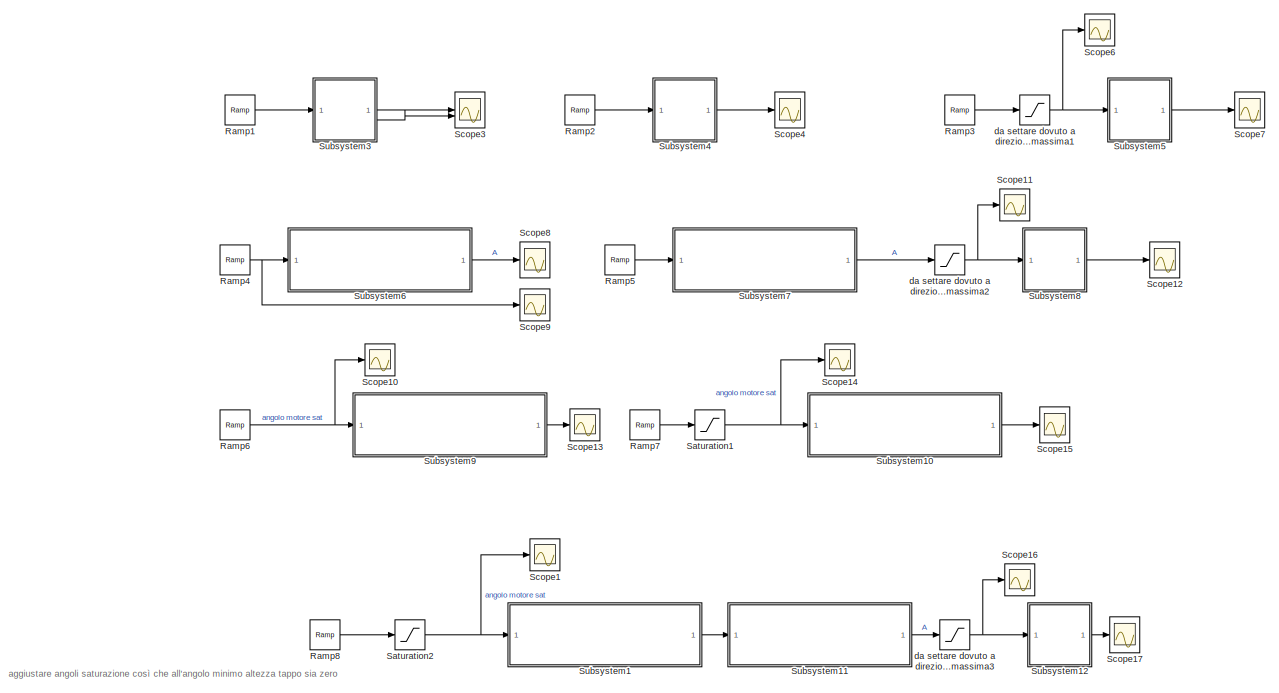
[diagram: root canvas - part 1/8, top center region]
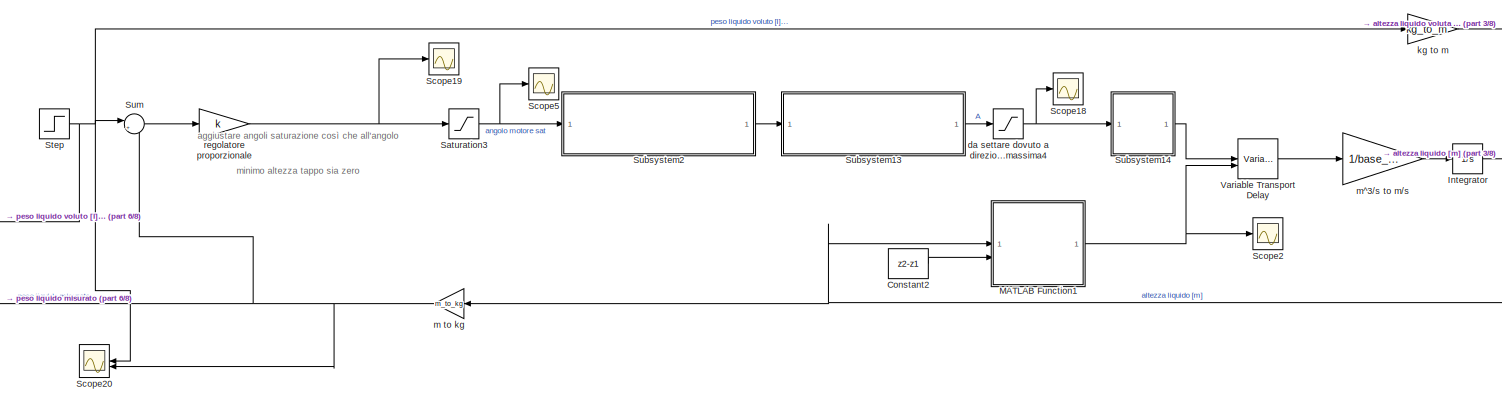
[diagram: root canvas - part 2/8, central region]
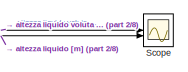
[diagram: root canvas - part 3/8, middle right region]
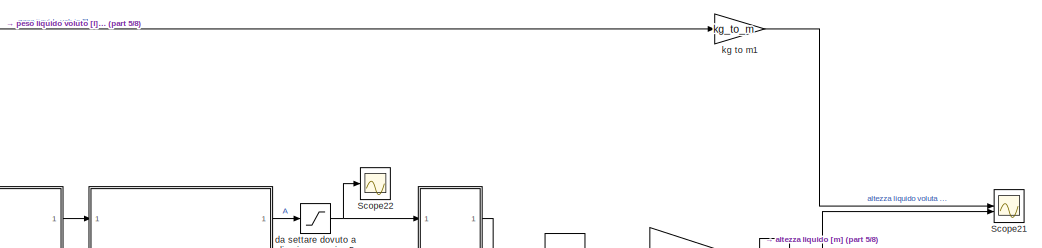
[diagram: root canvas - part 4/8, middle right region]
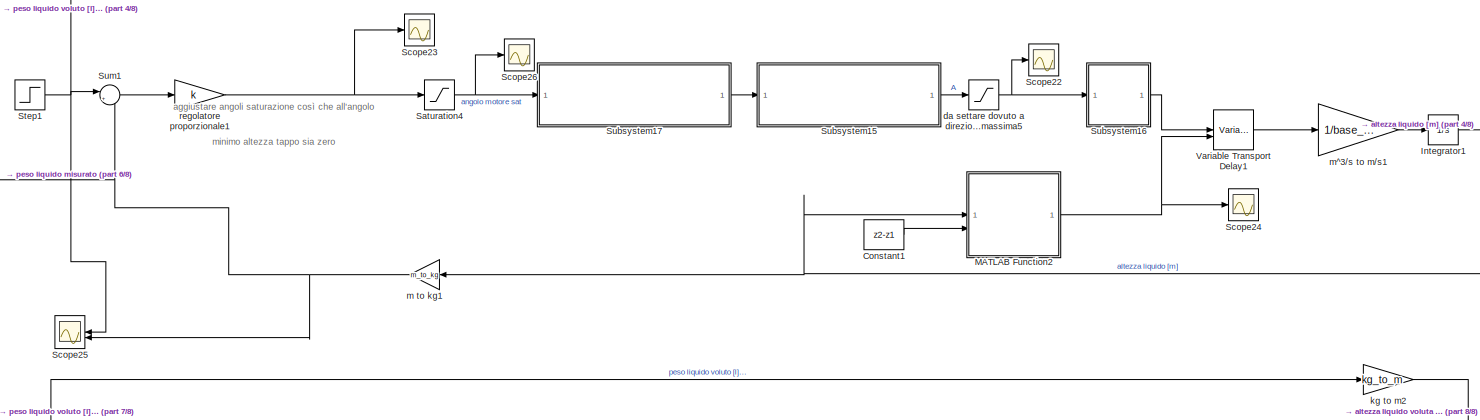
[diagram: root canvas - part 5/8, bottom center region]
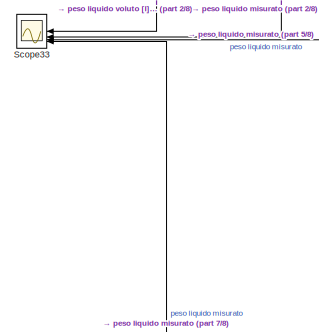
[diagram: root canvas - part 6/8, bottom left region]
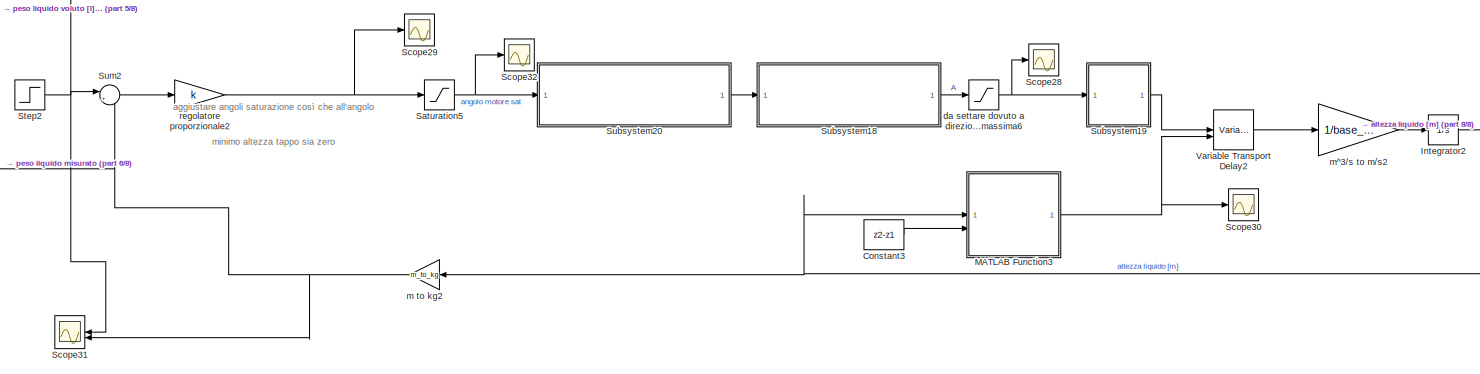
[diagram: root canvas - part 7/8, bottom center region]
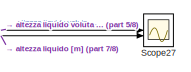
[diagram: root canvas - part 8/8, bottom right region]
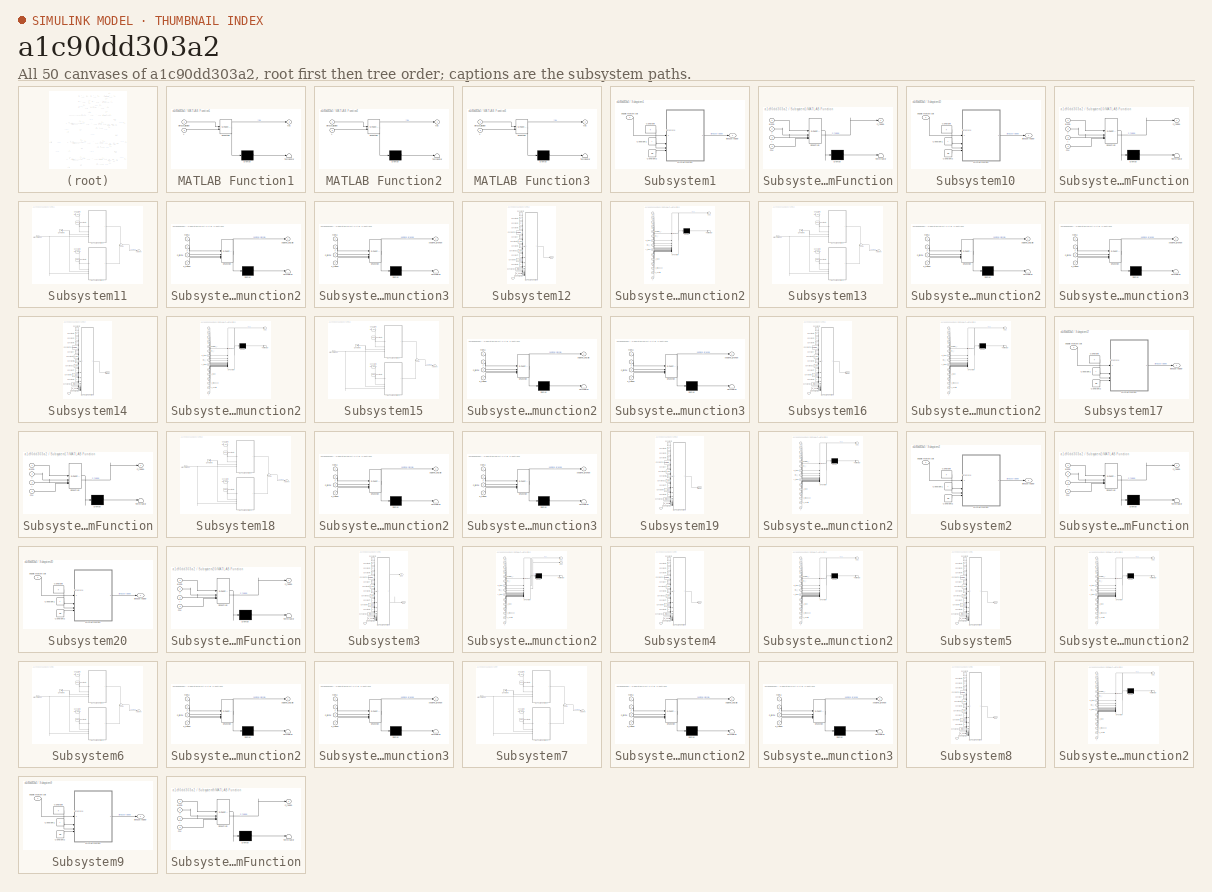
[diagram: thumbnail index - all 50 canvases of the model, root first then tree order]
MODEL slx_a1c90dd303a2
KIND model
CONFIG AbsTol = auto
CONFIG EnableMultiTasking = off
CONFIG FixedStep = auto
CONFIG MaxStep = auto
CONFIG MinStep = auto
CONFIG RelTol = 1e-3
CONFIG SampleTimeConstraint = Unconstrained
CONFIG SolverName = VariableStepAuto
CONFIG StartTime = 0.0
CONFIG StopTime = T_sim
BLOCK [Constant] Constant1
  Value = z2-z1
BLOCK [Constant] Constant2
  Value = z2-z1
BLOCK [Constant] Constant3
  Value = z2-z1
BLOCK [Integrator] Integrator
  InitialCondition = livello_0
BLOCK [Integrator] Integrator1
  InitialCondition = livello_0
BLOCK [Integrator] Integrator2
  InitialCondition = livello_0
BLOCK [SubSystem] MATLAB Function1
  ErrorFcn = Stateflow.Translate.translate
  LibrarySourceBlock = simulink/User-Defined\nFunctions/MATLAB Function
  PermitHierarchicalResolution = ExplicitOnly
  SFBlockType = MATLAB Function
  TreatAsAtomicUnit = on
BLOCK [Demux] MATLAB Function1/ Demux 
  Outputs = 1
BLOCK [S-Function] MATLAB Function1/ SFunction 
  EnableBusSupport = on
  FunctionName = sf_sfun
  PortCounts = [2 2]
  SFcnIsStateOwnerBlock = off
  SFunctionDeploymentMode = off
  Tag = Stateflow S-Function 3
BLOCK [Terminator] MATLAB Function1/ Terminator 
BLOCK [Inport] MATLAB Function1/L
  Port = 2
BLOCK [Inport] MATLAB Function1/altezza_liquido
BLOCK [Outport] MATLAB Function1/tau
BLOCK [SubSystem] MATLAB Function2
  ErrorFcn = Stateflow.Translate.translate
  LibrarySourceBlock = simulink/User-Defined\nFunctions/MATLAB Function
  PermitHierarchicalResolution = ExplicitOnly
  SFBlockType = MATLAB Function
  TreatAsAtomicUnit = on
BLOCK [Demux] MATLAB Function2/ Demux 
  Outputs = 1
BLOCK [S-Function] MATLAB Function2/ SFunction 
  EnableBusSupport = on
  FunctionName = sf_sfun
  PortCounts = [2 2]
  SFcnIsStateOwnerBlock = off
  SFunctionDeploymentMode = off
  Tag = Stateflow S-Function 20
BLOCK [Terminator] MATLAB Function2/ Terminator 
BLOCK [Inport] MATLAB Function2/L
  Port = 2
BLOCK [Inport] MATLAB Function2/altezza_liquido
BLOCK [Outport] MATLAB Function2/tau
BLOCK [SubSystem] MATLAB Function3
  ErrorFcn = Stateflow.Translate.translate
  LibrarySourceBlock = simulink/User-Defined\nFunctions/MATLAB Function
  PermitHierarchicalResolution = ExplicitOnly
  SFBlockType = MATLAB Function
  TreatAsAtomicUnit = on
BLOCK [Demux] MATLAB Function3/ Demux 
  Outputs = 1
BLOCK [S-Function] MATLAB Function3/ SFunction 
  EnableBusSupport = on
  FunctionName = sf_sfun
  PortCounts = [2 2]
  SFcnIsStateOwnerBlock = off
  SFunctionDeploymentMode = off
  Tag = Stateflow S-Function 25
BLOCK [Terminator] MATLAB Function3/ Terminator 
BLOCK [Inport] MATLAB Function3/L
  Port = 2
BLOCK [Inport] MATLAB Function3/altezza_liquido
BLOCK [Outport] MATLAB Function3/tau
BLOCK [Reference] Ramp1  REF=simulink/Sources/Ramp
  SourceBlock = simulink/Sources/Ramp
  SourceType = Ramp
BLOCK [Reference] Ramp2  REF=simulink/Sources/Ramp
  SourceBlock = simulink/Sources/Ramp
  SourceType = Ramp
BLOCK [Reference] Ramp3  REF=simulink/Sources/Ramp
  SourceBlock = simulink/Sources/Ramp
  SourceType = Ramp
BLOCK [Reference] Ramp4  REF=simulink/Sources/Ramp
  SourceBlock = simulink/Sources/Ramp
  SourceType = Ramp
BLOCK [Reference] Ramp5  REF=simulink/Sources/Ramp
  SourceBlock = simulink/Sources/Ramp
  SourceType = Ramp
BLOCK [Reference] Ramp6  REF=simulink/Sources/Ramp
  SourceBlock = simulink/Sources/Ramp
  SourceType = Ramp
BLOCK [Reference] Ramp7  REF=simulink/Sources/Ramp
  SourceBlock = simulink/Sources/Ramp
  SourceType = Ramp
BLOCK [Reference] Ramp8  REF=simulink/Sources/Ramp
  SourceBlock = simulink/Sources/Ramp
  SourceType = Ramp
BLOCK [Saturate] Saturation1
  LowerLimit = 0.01
  UpperLimit = pi
BLOCK [Saturate] Saturation2
  LowerLimit = 0.01
  UpperLimit = pi
BLOCK [Saturate] Saturation3
  LowerLimit = 0.01
  UpperLimit = pi
BLOCK [Saturate] Saturation4
  LowerLimit = 0.01
  UpperLimit = pi
BLOCK [Saturate] Saturation5
  LowerLimit = 0.01
  UpperLimit = pi
BLOCK [Scope] Scope
  Floating = off
  NumInputPorts = 2
  ScopeSpecificationString = Simulink.scopes.TimeScopeBlockCfg('CurrentConfiguration', extmgr.ConfigurationSet(extmgr.Configuration('Core','General UI',true),extmgr.Configuration('Core','Source UI',true),extmgr.Configuration('Sources','WiredSimulink',true,'DataLoggingVariableName','ScopeData2'),extmgr.Configuration('Visuals','Time Domain',true,'SerializedDisplays',{struct('MinYLimReal','-0.0125','MaxYLimReal','0.11252','YLabe...<+1446ch>
BLOCK [Scope] Scope1
  Floating = off
  NumInputPorts = 1
  ScopeSpecificationString = Simulink.scopes.TimeScopeBlockCfg('CurrentConfiguration', extmgr.ConfigurationSet(extmgr.Configuration('Core','General UI',true),extmgr.Configuration('Core','Source UI',true),extmgr.Configuration('Sources','WiredSimulink',true,'DataLoggingVariableName','ScopeData3'),extmgr.Configuration('Visuals','Time Domain',true,'SerializedDisplays',{struct('MinYLimReal','-0.27','MaxYLimReal','2.53','YLabelReal...<+1358ch>
BLOCK [Scope] Scope10
  Floating = off
  NumInputPorts = 1
  ScopeSpecificationString = Simulink.scopes.TimeScopeBlockCfg('CurrentConfiguration', extmgr.ConfigurationSet(extmgr.Configuration('Core','General UI',true),extmgr.Configuration('Core','Source UI',true),extmgr.Configuration('Sources','WiredSimulink',true,'DataLoggingVariableName','ScopeData4'),extmgr.Configuration('Visuals','Time Domain',true,'SerializedDisplays',{struct('MinYLimReal','-0.27','MaxYLimReal','2.53','YLabelReal...<+1358ch>
BLOCK [Scope] Scope11
  Floating = off
  NumInputPorts = 1
  ScopeSpecificationString = Simulink.scopes.TimeScopeBlockCfg('CurrentConfiguration', extmgr.ConfigurationSet(extmgr.Configuration('Core','General UI',true),extmgr.Configuration('Core','Source UI',true),extmgr.Configuration('Sources','WiredSimulink',true,'DataLoggingVariableName','ScopeData5'),extmgr.Configuration('Visuals','Time Domain',true,'SerializedDisplays',{struct('MinYLimReal','0.0009','MaxYLimReal','0.0011','YLabelR...<+1421ch>
BLOCK [Scope] Scope12
  Floating = off
  NumInputPorts = 1
  ScopeSpecificationString = Simulink.scopes.TimeScopeBlockCfg('CurrentConfiguration', extmgr.ConfigurationSet(extmgr.Configuration('Core','General UI',true),extmgr.Configuration('Core','Source UI',true),extmgr.Configuration('Sources','WiredSimulink',true,'DataLoggingVariableName','ScopeData6'),extmgr.Configuration('Visuals','Time Domain',true,'SerializedDisplays',{struct('MinYLimReal','-0.00003','MaxYLimReal','0.00031','YLab...<+1396ch>
BLOCK [Scope] Scope13
  Floating = off
  NumInputPorts = 1
  ScopeSpecificationString = Simulink.scopes.TimeScopeBlockCfg('CurrentConfiguration', extmgr.ConfigurationSet(extmgr.Configuration('Core','General UI',true),extmgr.Configuration('Core','Source UI',true),extmgr.Configuration('Sources','WiredSimulink',true,'DataLoggingVariableName','ScopeData7'),extmgr.Configuration('Visuals','Time Domain',true,'SerializedDisplays',{struct('MinYLimReal','-0.005','MaxYLimReal','0.04498','YLabel...<+1365ch>
BLOCK [Scope] Scope14
  Floating = off
  NumInputPorts = 1
  ScopeSpecificationString = Simulink.scopes.TimeScopeBlockCfg('CurrentConfiguration', extmgr.ConfigurationSet(extmgr.Configuration('Core','General UI',true),extmgr.Configuration('Core','Source UI',true),extmgr.Configuration('Sources','WiredSimulink',true,'DataLoggingVariableName','ScopeData8'),extmgr.Configuration('Visuals','Time Domain',true,'SerializedDisplays',{struct('MinYLimReal','-0.345','MaxYLimReal','3.205','YLabelRe...<+1364ch>
BLOCK [Scope] Scope15
  Floating = off
  NumInputPorts = 1
  ScopeSpecificationString = Simulink.scopes.TimeScopeBlockCfg('CurrentConfiguration', extmgr.ConfigurationSet(extmgr.Configuration('Core','General UI',true),extmgr.Configuration('Core','Source UI',true),extmgr.Configuration('Sources','WiredSimulink',true,'DataLoggingVariableName','ScopeData9'),extmgr.Configuration('Visuals','Time Domain',true,'SerializedDisplays',{struct('MinYLimReal','-0.00496','MaxYLimReal','0.04468','YLab...<+1468ch>
BLOCK [Scope] Scope16
  Floating = off
  NumInputPorts = 1
  ScopeSpecificationString = Simulink.scopes.TimeScopeBlockCfg('CurrentConfiguration', extmgr.ConfigurationSet(extmgr.Configuration('Core','General UI',true),extmgr.Configuration('Core','Source UI',true),extmgr.Configuration('Sources','WiredSimulink',true,'DataLoggingVariableName','ScopeData10'),extmgr.Configuration('Visuals','Time Domain',true,'SerializedDisplays',{struct('MinYLimReal','0.0009','MaxYLimReal','0.0011','YLabel...<+1422ch>
BLOCK [Scope] Scope17
  Floating = off
  NumInputPorts = 1
  ScopeSpecificationString = Simulink.scopes.TimeScopeBlockCfg('CurrentConfiguration', extmgr.ConfigurationSet(extmgr.Configuration('Core','General UI',true),extmgr.Configuration('Core','Source UI',true),extmgr.Configuration('Sources','WiredSimulink',true,'DataLoggingVariableName','ScopeData11'),extmgr.Configuration('Visuals','Time Domain',true,'SerializedDisplays',{struct('MinYLimReal','-0.00003','MaxYLimReal','0.00031','YLa...<+1398ch>
BLOCK [Scope] Scope18
  Floating = off
  NumInputPorts = 1
  ScopeSpecificationString = Simulink.scopes.TimeScopeBlockCfg('CurrentConfiguration', extmgr.ConfigurationSet(extmgr.Configuration('Core','General UI',true),extmgr.Configuration('Core','Source UI',true),extmgr.Configuration('Sources','WiredSimulink',true,'DataLoggingVariableName','ScopeData12'),extmgr.Configuration('Visuals','Time Domain',true,'SerializedDisplays',{struct('MinYLimReal','-0.00016','MaxYLimReal','0.00148','YLa...<+1433ch>
BLOCK [Scope] Scope19
  Floating = off
  NumInputPorts = 1
  ScopeSpecificationString = Simulink.scopes.TimeScopeBlockCfg('CurrentConfiguration', extmgr.ConfigurationSet(extmgr.Configuration('Core','General UI',true),extmgr.Configuration('Core','Source UI',true),extmgr.Configuration('Sources','WiredSimulink',true,'DataLoggingVariableName','ScopeData13'),extmgr.Configuration('Visuals','Time Domain',true,'SerializedDisplays',{struct('MinYLimReal','-0.625','MaxYLimReal','5.625','YLabelR...<+1372ch>
BLOCK [Scope] Scope2
  Floating = off
  NumInputPorts = 1
  ScopeSpecificationString = Simulink.scopes.TimeScopeBlockCfg('CurrentConfiguration', extmgr.ConfigurationSet(extmgr.Configuration('Core','General UI',true),extmgr.Configuration('Core','Source UI',true),extmgr.Configuration('Sources','WiredSimulink',true,'DataLoggingVariableName','ScopeData14'),extmgr.Configuration('Visuals','Time Domain',true,'SerializedDisplays',{struct('MinYLimReal','0.31635','MaxYLimReal','0.3196','YLabe...<+1399ch>
BLOCK [Scope] Scope20
  Floating = off
  NumInputPorts = 2
  ScopeSpecificationString = Simulink.scopes.TimeScopeBlockCfg('CurrentConfiguration', extmgr.ConfigurationSet(extmgr.Configuration('Core','General UI',true),extmgr.Configuration('Core','Source UI',true),extmgr.Configuration('Sources','WiredSimulink',true,'DataLoggingVariableName','ScopeData15'),extmgr.Configuration('Visuals','Time Domain',true,'SerializedDisplays',{struct('MinYLimReal','-1.25','MaxYLimReal','11.25','YLabelRe...<+1791ch>
BLOCK [Scope] Scope21
  Floating = off
  NumInputPorts = 2
  ScopeSpecificationString = Simulink.scopes.TimeScopeBlockCfg('CurrentConfiguration', extmgr.ConfigurationSet(extmgr.Configuration('Core','General UI',true),extmgr.Configuration('Core','Source UI',true),extmgr.Configuration('Sources','WiredSimulink',true,'DataLoggingVariableName','ScopeData1'),extmgr.Configuration('Visuals','Time Domain',true,'SerializedDisplays',{struct('MinYLimReal','-0.0125','MaxYLimReal','0.11252','YLabe...<+1446ch>
BLOCK [Scope] Scope22
  Floating = off
  NumInputPorts = 1
  ScopeSpecificationString = Simulink.scopes.TimeScopeBlockCfg('CurrentConfiguration', extmgr.ConfigurationSet(extmgr.Configuration('Core','General UI',true),extmgr.Configuration('Core','Source UI',true),extmgr.Configuration('Sources','WiredSimulink',true,'DataLoggingVariableName','ScopeData2'),extmgr.Configuration('Visuals','Time Domain',true,'SerializedDisplays',{struct('MinYLimReal','-0.00016','MaxYLimReal','0.00148','YLab...<+1432ch>
BLOCK [Scope] Scope23
  Floating = off
  NumInputPorts = 1
  ScopeSpecificationString = Simulink.scopes.TimeScopeBlockCfg('CurrentConfiguration', extmgr.ConfigurationSet(extmgr.Configuration('Core','General UI',true),extmgr.Configuration('Core','Source UI',true),extmgr.Configuration('Sources','WiredSimulink',true,'DataLoggingVariableName','ScopeData3'),extmgr.Configuration('Visuals','Time Domain',true,'SerializedDisplays',{struct('MinYLimReal','-0.625','MaxYLimReal','5.625','YLabelRe...<+1371ch>
BLOCK [Scope] Scope24
  Floating = off
  NumInputPorts = 1
  ScopeSpecificationString = Simulink.scopes.TimeScopeBlockCfg('CurrentConfiguration', extmgr.ConfigurationSet(extmgr.Configuration('Core','General UI',true),extmgr.Configuration('Core','Source UI',true),extmgr.Configuration('Sources','WiredSimulink',true,'DataLoggingVariableName','ScopeData4'),extmgr.Configuration('Visuals','Time Domain',true,'SerializedDisplays',{struct('MinYLimReal','0.31635','MaxYLimReal','0.3196','YLabel...<+1398ch>
BLOCK [Scope] Scope25
  Floating = off
  NumInputPorts = 2
  ScopeSpecificationString = Simulink.scopes.TimeScopeBlockCfg('CurrentConfiguration', extmgr.ConfigurationSet(extmgr.Configuration('Core','General UI',true),extmgr.Configuration('Core','Source UI',true),extmgr.Configuration('Sources','WiredSimulink',true,'DataLoggingVariableName','ScopeData5'),extmgr.Configuration('Visuals','Time Domain',true,'SerializedDisplays',{struct('MinYLimReal','-1.25','MaxYLimReal','11.25','YLabelRea...<+1790ch>
BLOCK [Scope] Scope26
  Floating = off
  NumInputPorts = 1
  ScopeSpecificationString = Simulink.scopes.TimeScopeBlockCfg('CurrentConfiguration', extmgr.ConfigurationSet(extmgr.Configuration('Core','General UI',true),extmgr.Configuration('Core','Source UI',true),extmgr.Configuration('Sources','WiredSimulink',true,'DataLoggingVariableName','ScopeData6'),extmgr.Configuration('Visuals','Time Domain',true,'SerializedDisplays',{struct('MinYLimReal','-0.27','MaxYLimReal','2.53','YLabelReal...<+1358ch>
BLOCK [Scope] Scope27
  Floating = off
  NumInputPorts = 2
  ScopeSpecificationString = Simulink.scopes.TimeScopeBlockCfg('CurrentConfiguration', extmgr.ConfigurationSet(extmgr.Configuration('Core','General UI',true),extmgr.Configuration('Core','Source UI',true),extmgr.Configuration('Sources','WiredSimulink',true,'DataLoggingVariableName','ScopeData7'),extmgr.Configuration('Visuals','Time Domain',true,'SerializedDisplays',{struct('MinYLimReal','-0.0125','MaxYLimReal','0.11252','YLabe...<+1446ch>
BLOCK [Scope] Scope28
  Floating = off
  NumInputPorts = 1
  ScopeSpecificationString = Simulink.scopes.TimeScopeBlockCfg('CurrentConfiguration', extmgr.ConfigurationSet(extmgr.Configuration('Core','General UI',true),extmgr.Configuration('Core','Source UI',true),extmgr.Configuration('Sources','WiredSimulink',true,'DataLoggingVariableName','ScopeData8'),extmgr.Configuration('Visuals','Time Domain',true,'SerializedDisplays',{struct('MinYLimReal','-0.00016','MaxYLimReal','0.00148','YLab...<+1432ch>
BLOCK [Scope] Scope29
  Floating = off
  NumInputPorts = 1
  ScopeSpecificationString = Simulink.scopes.TimeScopeBlockCfg('CurrentConfiguration', extmgr.ConfigurationSet(extmgr.Configuration('Core','General UI',true),extmgr.Configuration('Core','Source UI',true),extmgr.Configuration('Sources','WiredSimulink',true,'DataLoggingVariableName','ScopeData9'),extmgr.Configuration('Visuals','Time Domain',true,'SerializedDisplays',{struct('MinYLimReal','-0.625','MaxYLimReal','5.625','YLabelRe...<+1371ch>
BLOCK [Scope] Scope3
  Floating = off
  NumInputPorts = 2
  ScopeSpecificationString = Simulink.scopes.TimeScopeBlockCfg('CurrentConfiguration', extmgr.ConfigurationSet(extmgr.Configuration('Core','General UI',true),extmgr.Configuration('Core','Source UI',true),extmgr.Configuration('Sources','WiredSimulink',true,'DataLoggingVariableName','ScopeData16'),extmgr.Configuration('Visuals','Time Domain',true,'SerializedDisplays',{struct('MinYLimReal','-0.00232','MaxYLimReal','0.00057','YLa...<+1419ch>
BLOCK [Scope] Scope30
  Floating = off
  NumInputPorts = 1
  ScopeSpecificationString = Simulink.scopes.TimeScopeBlockCfg('CurrentConfiguration', extmgr.ConfigurationSet(extmgr.Configuration('Core','General UI',true),extmgr.Configuration('Core','Source UI',true),extmgr.Configuration('Sources','WiredSimulink',true,'DataLoggingVariableName','ScopeData10'),extmgr.Configuration('Visuals','Time Domain',true,'SerializedDisplays',{struct('MinYLimReal','0.31635','MaxYLimReal','0.3196','YLabe...<+1399ch>
BLOCK [Scope] Scope31
  Floating = off
  NumInputPorts = 2
  ScopeSpecificationString = Simulink.scopes.TimeScopeBlockCfg('CurrentConfiguration', extmgr.ConfigurationSet(extmgr.Configuration('Core','General UI',true),extmgr.Configuration('Core','Source UI',true),extmgr.Configuration('Sources','WiredSimulink',true,'DataLoggingVariableName','ScopeData11'),extmgr.Configuration('Visuals','Time Domain',true,'SerializedDisplays',{struct('MinYLimReal','-1.25','MaxYLimReal','11.25','YLabelRe...<+1791ch>
BLOCK [Scope] Scope32
  Floating = off
  NumInputPorts = 1
  ScopeSpecificationString = Simulink.scopes.TimeScopeBlockCfg('CurrentConfiguration', extmgr.ConfigurationSet(extmgr.Configuration('Core','General UI',true),extmgr.Configuration('Core','Source UI',true),extmgr.Configuration('Sources','WiredSimulink',true,'DataLoggingVariableName','ScopeData12'),extmgr.Configuration('Visuals','Time Domain',true,'SerializedDisplays',{struct('MinYLimReal','-0.27','MaxYLimReal','2.53','YLabelRea...<+1359ch>
BLOCK [Scope] Scope33
  Floating = off
  NumInputPorts = 4
  ScopeSpecificationString = Simulink.scopes.TimeScopeBlockCfg('CurrentConfiguration', extmgr.ConfigurationSet(extmgr.Configuration('Core','General UI',true),extmgr.Configuration('Core','Source UI',true),extmgr.Configuration('Sources','WiredSimulink',true,'DataLoggingVariableName','ScopeData13'),extmgr.Configuration('Visuals','Time Domain',true,'SerializedDisplays',{struct('MinYLimReal','-1.2547','MaxYLimReal','11.29232','YLa...<+1826ch>
BLOCK [Scope] Scope4
  Floating = off
  NumInputPorts = 1
  ScopeSpecificationString = Simulink.scopes.TimeScopeBlockCfg('CurrentConfiguration', extmgr.ConfigurationSet(extmgr.Configuration('Core','General UI',true),extmgr.Configuration('Core','Source UI',true),extmgr.Configuration('Sources','WiredSimulink',true,'DataLoggingVariableName','ScopeData17'),extmgr.Configuration('Visuals','Time Domain',true,'SerializedDisplays',{struct('MinYLimReal','-0.00003','MaxYLimReal','0.00031','YLa...<+1398ch>
BLOCK [Scope] Scope5
  Floating = off
  NumInputPorts = 1
  ScopeSpecificationString = Simulink.scopes.TimeScopeBlockCfg('CurrentConfiguration', extmgr.ConfigurationSet(extmgr.Configuration('Core','General UI',true),extmgr.Configuration('Core','Source UI',true),extmgr.Configuration('Sources','WiredSimulink',true,'DataLoggingVariableName','ScopeData18'),extmgr.Configuration('Visuals','Time Domain',true,'SerializedDisplays',{struct('MinYLimReal','-0.27','MaxYLimReal','2.53','YLabelRea...<+1359ch>
BLOCK [Scope] Scope6
  Floating = off
  NumInputPorts = 1
  ScopeSpecificationString = Simulink.scopes.TimeScopeBlockCfg('CurrentConfiguration', extmgr.ConfigurationSet(extmgr.Configuration('Core','General UI',true),extmgr.Configuration('Core','Source UI',true),extmgr.Configuration('Sources','WiredSimulink',true,'DataLoggingVariableName','ScopeData19'),extmgr.Configuration('Visuals','Time Domain',true,'SerializedDisplays',{struct('MinYLimReal','0.0009','MaxYLimReal','0.0011','YLabel...<+1422ch>
BLOCK [Scope] Scope7
  Floating = off
  NumInputPorts = 1
  ScopeSpecificationString = Simulink.scopes.TimeScopeBlockCfg('CurrentConfiguration', extmgr.ConfigurationSet(extmgr.Configuration('Core','General UI',true),extmgr.Configuration('Core','Source UI',true),extmgr.Configuration('Sources','WiredSimulink',true,'DataLoggingVariableName','ScopeData20'),extmgr.Configuration('Visuals','Time Domain',true,'SerializedDisplays',{struct('MinYLimReal','-0.00003','MaxYLimReal','0.00031','YLa...<+1398ch>
BLOCK [Scope] Scope8
  Floating = off
  NumInputPorts = 1
  ScopeSpecificationString = Simulink.scopes.TimeScopeBlockCfg('CurrentConfiguration', extmgr.ConfigurationSet(extmgr.Configuration('Core','General UI',true),extmgr.Configuration('Core','Source UI',true),extmgr.Configuration('Sources','WiredSimulink',true,'DataLoggingVariableName','ScopeData21'),extmgr.Configuration('Visuals','Time Domain',true,'SerializedDisplays',{struct('MinYLimReal','-0.00025','MaxYLimReal','0.00221','YLa...<+1389ch>
BLOCK [Scope] Scope9
  Floating = off
  NumInputPorts = 1
  ScopeSpecificationString = Simulink.scopes.TimeScopeBlockCfg('CurrentConfiguration', extmgr.ConfigurationSet(extmgr.Configuration('Core','General UI',true),extmgr.Configuration('Core','Source UI',true),extmgr.Configuration('Sources','WiredSimulink',true),extmgr.Configuration('Visuals','Time Domain',true,'SerializedDisplays',{struct('MinYLimReal','-0.00594','MaxYLimReal','0.05344','YLabelReal','','MinYLimMag','0.00000','MaxY...<+1325ch>
BLOCK [Step] Step
  After = step_liq
  SampleTime = 0
  Time = step_time
BLOCK [Step] Step1
  After = step_liq
  SampleTime = 0
  Time = step_time
BLOCK [Step] Step2
  After = step_liq
  SampleTime = 0
  Time = step_time
BLOCK [SubSystem] Subsystem1
BLOCK [Constant] Subsystem1/Constant
  Value = r
BLOCK [Constant] Subsystem1/Constant1
  Value = l
BLOCK [Constant] Subsystem1/Constant2
  Value = mu
BLOCK [SubSystem] Subsystem1/MATLAB Function
  ErrorFcn = Stateflow.Translate.translate
  LibrarySourceBlock = simulink/User-Defined\nFunctions/MATLAB Function
  PermitHierarchicalResolution = ExplicitOnly
  SFBlockType = MATLAB Function
  TreatAsAtomicUnit = on
BLOCK [Demux] Subsystem1/MATLAB Function/ Demux 
  Outputs = 1
BLOCK [S-Function] Subsystem1/MATLAB Function/ SFunction 
  EnableBusSupport = on
  FunctionName = sf_sfun
  PortCounts = [4 2]
  SFcnIsStateOwnerBlock = off
  SFunctionDeploymentMode = off
  Tag = Stateflow S-Function 2
BLOCK [Terminator] Subsystem1/MATLAB Function/ Terminator 
BLOCK [Inport] Subsystem1/MATLAB Function/alpha
BLOCK [Outport] Subsystem1/MATLAB Function/h_tappo
BLOCK [Inport] Subsystem1/MATLAB Function/l
  Port = 3
BLOCK [Inport] Subsystem1/MATLAB Function/mu
  Port = 4
BLOCK [Inport] Subsystem1/MATLAB Function/r
  Port = 2
BLOCK [Outport] Subsystem1/altezza tappo
BLOCK [Inport] Subsystem1/angolo motore sat
BLOCK [SubSystem] Subsystem10
BLOCK [Constant] Subsystem10/Constant
  Value = r
BLOCK [Constant] Subsystem10/Constant1
  Value = l
BLOCK [Constant] Subsystem10/Constant2
  Value = mu
BLOCK [SubSystem] Subsystem10/MATLAB Function
  ErrorFcn = Stateflow.Translate.translate
  LibrarySourceBlock = simulink/User-Defined\nFunctions/MATLAB Function
  PermitHierarchicalResolution = ExplicitOnly
  SFBlockType = MATLAB Function
  TreatAsAtomicUnit = on
BLOCK [Demux] Subsystem10/MATLAB Function/ Demux 
  Outputs = 1
BLOCK [S-Function] Subsystem10/MATLAB Function/ SFunction 
  EnableBusSupport = on
  FunctionName = sf_sfun
  PortCounts = [4 2]
  SFcnIsStateOwnerBlock = off
  SFunctionDeploymentMode = off
  Tag = Stateflow S-Function 14
BLOCK [Terminator] Subsystem10/MATLAB Function/ Terminator 
BLOCK [Inport] Subsystem10/MATLAB Function/alpha
BLOCK [Outport] Subsystem10/MATLAB Function/h_tappo
BLOCK [Inport] Subsystem10/MATLAB Function/l
  Port = 3
BLOCK [Inport] Subsystem10/MATLAB Function/mu
  Port = 4
BLOCK [Inport] Subsystem10/MATLAB Function/r
  Port = 2
BLOCK [Outport] Subsystem10/altezza tappo
BLOCK [Inport] Subsystem10/angolo motore sat
BLOCK [SubSystem] Subsystem11
BLOCK [Constant] Subsystem11/Constant1
  Value = theta_piccolo
BLOCK [Constant] Subsystem11/Constant3
  Value = theta_grande
  VectorParams1D = off
BLOCK [Constant] Subsystem11/Constant4
  Value = r_piccolo
BLOCK [Constant] Subsystem11/Constant5
  Value = r_grande
BLOCK [Constant] Subsystem11/Constant6
  Value = h_limite
BLOCK [SubSystem] Subsystem11/MATLAB Function2
  ErrorFcn = Stateflow.Translate.translate
  LibrarySourceBlock = simulink/User-Defined\nFunctions/MATLAB Function
  PermitHierarchicalResolution = ExplicitOnly
  SFBlockType = MATLAB Function
  TreatAsAtomicUnit = on
BLOCK [Demux] Subsystem11/MATLAB Function2/ Demux 
  Outputs = 1
BLOCK [S-Function] Subsystem11/MATLAB Function2/ SFunction 
  EnableBusSupport = on
  FunctionName = sf_sfun
  PortCounts = [4 2]
  SFcnIsStateOwnerBlock = off
  SFunctionDeploymentMode = off
  Tag = Stateflow S-Function 15
BLOCK [Terminator] Subsystem11/MATLAB Function2/ Terminator 
BLOCK [Inport] Subsystem11/MATLAB Function2/h_limite
  Port = 3
BLOCK [Inport] Subsystem11/MATLAB Function2/h_tappo
  Port = 4
BLOCK [Inport] Subsystem11/MATLAB Function2/r
  Port = 2
BLOCK [Outport] Subsystem11/MATLAB Function2/sezione_piccolo
BLOCK [Inport] Subsystem11/MATLAB Function2/theta
BLOCK [SubSystem] Subsystem11/MATLAB Function3
  ErrorFcn = Stateflow.Translate.translate
  LibrarySourceBlock = simulink/User-Defined\nFunctions/MATLAB Function
  PermitHierarchicalResolution = ExplicitOnly
  SFBlockType = MATLAB Function
  TreatAsAtomicUnit = on
BLOCK [Demux] Subsystem11/MATLAB Function3/ Demux 
  Outputs = 1
BLOCK [S-Function] Subsystem11/MATLAB Function3/ SFunction 
  EnableBusSupport = on
  FunctionName = sf_sfun
  PortCounts = [4 2]
  SFcnIsStateOwnerBlock = off
  SFunctionDeploymentMode = off
  Tag = Stateflow S-Function 16
BLOCK [Terminator] Subsystem11/MATLAB Function3/ Terminator 
BLOCK [Inport] Subsystem11/MATLAB Function3/h_limite
  Port = 3
BLOCK [Inport] Subsystem11/MATLAB Function3/h_tappo
  Port = 4
BLOCK [Inport] Subsystem11/MATLAB Function3/r
  Port = 2
BLOCK [Outport] Subsystem11/MATLAB Function3/sezione_grande
BLOCK [Inport] Subsystem11/MATLAB Function3/theta
BLOCK [Sum] Subsystem11/Sum1
BLOCK [Inport] Subsystem11/altezza tappo
BLOCK [Outport] Subsystem11/sezione
BLOCK [SubSystem] Subsystem12
BLOCK [Inport] Subsystem12/A
BLOCK [Constant] Subsystem12/Constant
  Value = rho_l
BLOCK [Constant] Subsystem12/Constant1
  Value = z2
BLOCK [Constant] Subsystem12/Constant10
  Value = k_imbocco
BLOCK [Constant] Subsystem12/Constant11
  Value = k_uscita
BLOCK [Constant] Subsystem12/Constant12
  Value = gamma_l
BLOCK [Constant] Subsystem12/Constant13
  Value = L_tubo
BLOCK [Constant] Subsystem12/Constant2
  Value = d_tubo
BLOCK [Constant] Subsystem12/Constant3
  Value = z1
BLOCK [Constant] Subsystem12/Constant4
  Value = p2
BLOCK [Constant] Subsystem12/Constant5
  Value = p1
BLOCK [Constant] Subsystem12/Constant6
  Value = mu_l
BLOCK [Constant] Subsystem12/Constant7
  Value = c
BLOCK [Constant] Subsystem12/Constant8
  Value = A_tubo
BLOCK [Constant] Subsystem12/Constant9
  Value = g
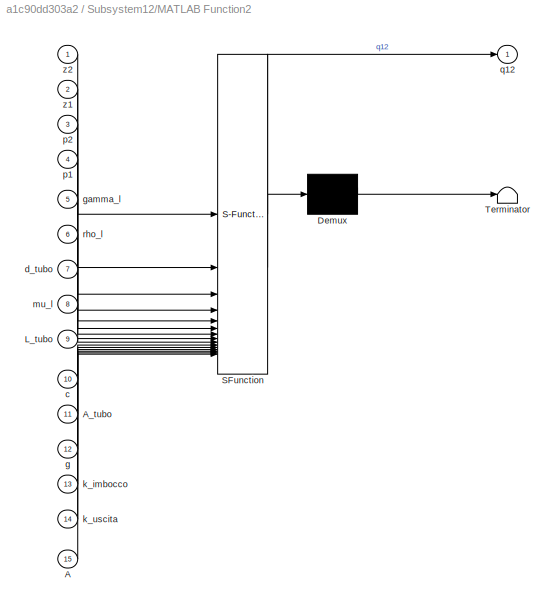
BLOCK [SubSystem] Subsystem12/MATLAB Function2
  ErrorFcn = Stateflow.Translate.translate
  LibrarySourceBlock = simulink/User-Defined\nFunctions/MATLAB Function
  PermitHierarchicalResolution = ExplicitOnly
  SFBlockType = MATLAB Function
  TreatAsAtomicUnit = on
BLOCK [Demux] Subsystem12/MATLAB Function2/ Demux 
  Outputs = 1
BLOCK [S-Function] Subsystem12/MATLAB Function2/ SFunction 
  EnableBusSupport = on
  FunctionName = sf_sfun
  PortCounts = [15 2]
  SFcnIsStateOwnerBlock = off
  SFunctionDeploymentMode = off
  Tag = Stateflow S-Function 17
BLOCK [Terminator] Subsystem12/MATLAB Function2/ Terminator 
BLOCK [Inport] Subsystem12/MATLAB Function2/A
  Port = 15
BLOCK [Inport] Subsystem12/MATLAB Function2/A_tubo
  Port = 11
BLOCK [Inport] Subsystem12/MATLAB Function2/L_tubo
  Port = 9
BLOCK [Inport] Subsystem12/MATLAB Function2/c
  Port = 10
BLOCK [Inport] Subsystem12/MATLAB Function2/d_tubo
  Port = 7
BLOCK [Inport] Subsystem12/MATLAB Function2/g
  Port = 12
BLOCK [Inport] Subsystem12/MATLAB Function2/gamma_l
  Port = 5
BLOCK [Inport] Subsystem12/MATLAB Function2/k_imbocco
  Port = 13
BLOCK [Inport] Subsystem12/MATLAB Function2/k_uscita
  Port = 14
BLOCK [Inport] Subsystem12/MATLAB Function2/mu_l
  Port = 8
BLOCK [Inport] Subsystem12/MATLAB Function2/p1
  Port = 4
BLOCK [Inport] Subsystem12/MATLAB Function2/p2
  Port = 3
BLOCK [Outport] Subsystem12/MATLAB Function2/q12
BLOCK [Inport] Subsystem12/MATLAB Function2/rho_l
  Port = 6
BLOCK [Inport] Subsystem12/MATLAB Function2/z1
  Port = 2
BLOCK [Inport] Subsystem12/MATLAB Function2/z2
BLOCK [Outport] Subsystem12/q12
BLOCK [SubSystem] Subsystem13
BLOCK [Constant] Subsystem13/Constant1
  Value = theta_piccolo
BLOCK [Constant] Subsystem13/Constant3
  Value = theta_grande
  VectorParams1D = off
BLOCK [Constant] Subsystem13/Constant4
  Value = r_piccolo
BLOCK [Constant] Subsystem13/Constant5
  Value = r_grande
BLOCK [Constant] Subsystem13/Constant6
  Value = h_limite
BLOCK [SubSystem] Subsystem13/MATLAB Function2
  ErrorFcn = Stateflow.Translate.translate
  LibrarySourceBlock = simulink/User-Defined\nFunctions/MATLAB Function
  PermitHierarchicalResolution = ExplicitOnly
  SFBlockType = MATLAB Function
  TreatAsAtomicUnit = on
BLOCK [Demux] Subsystem13/MATLAB Function2/ Demux 
  Outputs = 1
BLOCK [S-Function] Subsystem13/MATLAB Function2/ SFunction 
  EnableBusSupport = on
  FunctionName = sf_sfun
  PortCounts = [4 2]
  SFcnIsStateOwnerBlock = off
  SFunctionDeploymentMode = off
  Tag = Stateflow S-Function 4
BLOCK [Terminator] Subsystem13/MATLAB Function2/ Terminator 
BLOCK [Inport] Subsystem13/MATLAB Function2/h_limite
  Port = 3
BLOCK [Inport] Subsystem13/MATLAB Function2/h_tappo
  Port = 4
BLOCK [Inport] Subsystem13/MATLAB Function2/r
  Port = 2
BLOCK [Outport] Subsystem13/MATLAB Function2/sezione_piccolo
BLOCK [Inport] Subsystem13/MATLAB Function2/theta
BLOCK [SubSystem] Subsystem13/MATLAB Function3
  ErrorFcn = Stateflow.Translate.translate
  LibrarySourceBlock = simulink/User-Defined\nFunctions/MATLAB Function
  PermitHierarchicalResolution = ExplicitOnly
  SFBlockType = MATLAB Function
  TreatAsAtomicUnit = on
BLOCK [Demux] Subsystem13/MATLAB Function3/ Demux 
  Outputs = 1
BLOCK [S-Function] Subsystem13/MATLAB Function3/ SFunction 
  EnableBusSupport = on
  FunctionName = sf_sfun
  PortCounts = [4 2]
  SFcnIsStateOwnerBlock = off
  SFunctionDeploymentMode = off
  Tag = Stateflow S-Function 5
BLOCK [Terminator] Subsystem13/MATLAB Function3/ Terminator 
BLOCK [Inport] Subsystem13/MATLAB Function3/h_limite
  Port = 3
BLOCK [Inport] Subsystem13/MATLAB Function3/h_tappo
  Port = 4
BLOCK [Inport] Subsystem13/MATLAB Function3/r
  Port = 2
BLOCK [Outport] Subsystem13/MATLAB Function3/sezione_grande
BLOCK [Inport] Subsystem13/MATLAB Function3/theta
BLOCK [Sum] Subsystem13/Sum1
BLOCK [Inport] Subsystem13/altezza tappo
BLOCK [Outport] Subsystem13/sezione
BLOCK [SubSystem] Subsystem14
BLOCK [Inport] Subsystem14/A
BLOCK [Constant] Subsystem14/Constant
  Value = rho_l
BLOCK [Constant] Subsystem14/Constant1
  Value = z2
BLOCK [Constant] Subsystem14/Constant10
  Value = k_imbocco
BLOCK [Constant] Subsystem14/Constant11
  Value = k_uscita
BLOCK [Constant] Subsystem14/Constant12
  Value = gamma_l
BLOCK [Constant] Subsystem14/Constant13
  Value = L_tubo
BLOCK [Constant] Subsystem14/Constant2
  Value = d_tubo
BLOCK [Constant] Subsystem14/Constant3
  Value = z1
BLOCK [Constant] Subsystem14/Constant4
  Value = p2
BLOCK [Constant] Subsystem14/Constant5
  Value = p1
BLOCK [Constant] Subsystem14/Constant6
  Value = mu_l*up_percent
BLOCK [Constant] Subsystem14/Constant7
  Value = c
BLOCK [Constant] Subsystem14/Constant8
  Value = A_tubo
BLOCK [Constant] Subsystem14/Constant9
  Value = g
BLOCK [SubSystem] Subsystem14/MATLAB Function2
  ErrorFcn = Stateflow.Translate.translate
  LibrarySourceBlock = simulink/User-Defined\nFunctions/MATLAB Function
  PermitHierarchicalResolution = ExplicitOnly
  SFBlockType = MATLAB Function
  TreatAsAtomicUnit = on
BLOCK [Demux] Subsystem14/MATLAB Function2/ Demux 
  Outputs = 1
BLOCK [S-Function] Subsystem14/MATLAB Function2/ SFunction 
  EnableBusSupport = on
  FunctionName = sf_sfun
  PortCounts = [15 2]
  SFcnIsStateOwnerBlock = off
  SFunctionDeploymentMode = off
  Tag = Stateflow S-Function 18
BLOCK [Terminator] Subsystem14/MATLAB Function2/ Terminator 
BLOCK [Inport] Subsystem14/MATLAB Function2/A
  Port = 15
BLOCK [Inport] Subsystem14/MATLAB Function2/A_tubo
  Port = 11
BLOCK [Inport] Subsystem14/MATLAB Function2/L_tubo
  Port = 9
BLOCK [Inport] Subsystem14/MATLAB Function2/c
  Port = 10
BLOCK [Inport] Subsystem14/MATLAB Function2/d_tubo
  Port = 7
BLOCK [Inport] Subsystem14/MATLAB Function2/g
  Port = 12
BLOCK [Inport] Subsystem14/MATLAB Function2/gamma_l
  Port = 5
BLOCK [Inport] Subsystem14/MATLAB Function2/k_imbocco
  Port = 13
BLOCK [Inport] Subsystem14/MATLAB Function2/k_uscita
  Port = 14
BLOCK [Inport] Subsystem14/MATLAB Function2/mu_l
  Port = 8
BLOCK [Inport] Subsystem14/MATLAB Function2/p1
  Port = 4
BLOCK [Inport] Subsystem14/MATLAB Function2/p2
  Port = 3
BLOCK [Outport] Subsystem14/MATLAB Function2/q12
BLOCK [Inport] Subsystem14/MATLAB Function2/rho_l
  Port = 6
BLOCK [Inport] Subsystem14/MATLAB Function2/z1
  Port = 2
BLOCK [Inport] Subsystem14/MATLAB Function2/z2
BLOCK [Outport] Subsystem14/q [m^3//s]
BLOCK [SubSystem] Subsystem15
BLOCK [Constant] Subsystem15/Constant1
  Value = theta_piccolo
BLOCK [Constant] Subsystem15/Constant3
  Value = theta_grande
  VectorParams1D = off
BLOCK [Constant] Subsystem15/Constant4
  Value = r_piccolo
BLOCK [Constant] Subsystem15/Constant5
  Value = r_grande
BLOCK [Constant] Subsystem15/Constant6
  Value = h_limite
BLOCK [SubSystem] Subsystem15/MATLAB Function2
  ErrorFcn = Stateflow.Translate.translate
  LibrarySourceBlock = simulink/User-Defined\nFunctions/MATLAB Function
  PermitHierarchicalResolution = ExplicitOnly
  SFBlockType = MATLAB Function
  TreatAsAtomicUnit = on
BLOCK [Demux] Subsystem15/MATLAB Function2/ Demux 
  Outputs = 1
BLOCK [S-Function] Subsystem15/MATLAB Function2/ SFunction 
  EnableBusSupport = on
  FunctionName = sf_sfun
  PortCounts = [4 2]
  SFcnIsStateOwnerBlock = off
  SFunctionDeploymentMode = off
  Tag = Stateflow S-Function 21
BLOCK [Terminator] Subsystem15/MATLAB Function2/ Terminator 
BLOCK [Inport] Subsystem15/MATLAB Function2/h_limite
  Port = 3
BLOCK [Inport] Subsystem15/MATLAB Function2/h_tappo
  Port = 4
BLOCK [Inport] Subsystem15/MATLAB Function2/r
  Port = 2
BLOCK [Outport] Subsystem15/MATLAB Function2/sezione_piccolo
BLOCK [Inport] Subsystem15/MATLAB Function2/theta
BLOCK [SubSystem] Subsystem15/MATLAB Function3
  ErrorFcn = Stateflow.Translate.translate
  LibrarySourceBlock = simulink/User-Defined\nFunctions/MATLAB Function
  PermitHierarchicalResolution = ExplicitOnly
  SFBlockType = MATLAB Function
  TreatAsAtomicUnit = on
BLOCK [Demux] Subsystem15/MATLAB Function3/ Demux 
  Outputs = 1
BLOCK [S-Function] Subsystem15/MATLAB Function3/ SFunction 
  EnableBusSupport = on
  FunctionName = sf_sfun
  PortCounts = [4 2]
  SFcnIsStateOwnerBlock = off
  SFunctionDeploymentMode = off
  Tag = Stateflow S-Function 22
BLOCK [Terminator] Subsystem15/MATLAB Function3/ Terminator 
BLOCK [Inport] Subsystem15/MATLAB Function3/h_limite
  Port = 3
BLOCK [Inport] Subsystem15/MATLAB Function3/h_tappo
  Port = 4
BLOCK [Inport] Subsystem15/MATLAB Function3/r
  Port = 2
BLOCK [Outport] Subsystem15/MATLAB Function3/sezione_grande
BLOCK [Inport] Subsystem15/MATLAB Function3/theta
BLOCK [Sum] Subsystem15/Sum1
BLOCK [Inport] Subsystem15/altezza tappo
BLOCK [Outport] Subsystem15/sezione
BLOCK [SubSystem] Subsystem16
BLOCK [Inport] Subsystem16/A
BLOCK [Constant] Subsystem16/Constant
  Value = rho_l
BLOCK [Constant] Subsystem16/Constant1
  Value = z2
BLOCK [Constant] Subsystem16/Constant10
  Value = k_imbocco
BLOCK [Constant] Subsystem16/Constant11
  Value = k_uscita
BLOCK [Constant] Subsystem16/Constant12
  Value = gamma_l
BLOCK [Constant] Subsystem16/Constant13
  Value = L_tubo
BLOCK [Constant] Subsystem16/Constant2
  Value = d_tubo
BLOCK [Constant] Subsystem16/Constant3
  Value = z1
BLOCK [Constant] Subsystem16/Constant4
  Value = p2
BLOCK [Constant] Subsystem16/Constant5
  Value = p1
BLOCK [Constant] Subsystem16/Constant6
  Value = mu_l
BLOCK [Constant] Subsystem16/Constant7
  Value = c
BLOCK [Constant] Subsystem16/Constant8
  Value = A_tubo
BLOCK [Constant] Subsystem16/Constant9
  Value = g
BLOCK [SubSystem] Subsystem16/MATLAB Function2
  ErrorFcn = Stateflow.Translate.translate
  LibrarySourceBlock = simulink/User-Defined\nFunctions/MATLAB Function
  PermitHierarchicalResolution = ExplicitOnly
  SFBlockType = MATLAB Function
  TreatAsAtomicUnit = on
BLOCK [Demux] Subsystem16/MATLAB Function2/ Demux 
  Outputs = 1
BLOCK [S-Function] Subsystem16/MATLAB Function2/ SFunction 
  EnableBusSupport = on
  FunctionName = sf_sfun
  PortCounts = [15 2]
  SFcnIsStateOwnerBlock = off
  SFunctionDeploymentMode = off
  Tag = Stateflow S-Function 23
BLOCK [Terminator] Subsystem16/MATLAB Function2/ Terminator 
BLOCK [Inport] Subsystem16/MATLAB Function2/A
  Port = 15
BLOCK [Inport] Subsystem16/MATLAB Function2/A_tubo
  Port = 11
BLOCK [Inport] Subsystem16/MATLAB Function2/L_tubo
  Port = 9
BLOCK [Inport] Subsystem16/MATLAB Function2/c
  Port = 10
BLOCK [Inport] Subsystem16/MATLAB Function2/d_tubo
  Port = 7
BLOCK [Inport] Subsystem16/MATLAB Function2/g
  Port = 12
BLOCK [Inport] Subsystem16/MATLAB Function2/gamma_l
  Port = 5
BLOCK [Inport] Subsystem16/MATLAB Function2/k_imbocco
  Port = 13
BLOCK [Inport] Subsystem16/MATLAB Function2/k_uscita
  Port = 14
BLOCK [Inport] Subsystem16/MATLAB Function2/mu_l
  Port = 8
BLOCK [Inport] Subsystem16/MATLAB Function2/p1
  Port = 4
BLOCK [Inport] Subsystem16/MATLAB Function2/p2
  Port = 3
BLOCK [Outport] Subsystem16/MATLAB Function2/q12
BLOCK [Inport] Subsystem16/MATLAB Function2/rho_l
  Port = 6
BLOCK [Inport] Subsystem16/MATLAB Function2/z1
  Port = 2
BLOCK [Inport] Subsystem16/MATLAB Function2/z2
BLOCK [Outport] Subsystem16/q [m^3//s]
BLOCK [SubSystem] Subsystem17
BLOCK [Constant] Subsystem17/Constant
  Value = r
BLOCK [Constant] Subsystem17/Constant1
  Value = l
BLOCK [Constant] Subsystem17/Constant2
  Value = mu
BLOCK [SubSystem] Subsystem17/MATLAB Function
  ErrorFcn = Stateflow.Translate.translate
  LibrarySourceBlock = simulink/User-Defined\nFunctions/MATLAB Function
  PermitHierarchicalResolution = ExplicitOnly
  SFBlockType = MATLAB Function
  TreatAsAtomicUnit = on
BLOCK [Demux] Subsystem17/MATLAB Function/ Demux 
  Outputs = 1
BLOCK [S-Function] Subsystem17/MATLAB Function/ SFunction 
  EnableBusSupport = on
  FunctionName = sf_sfun
  PortCounts = [4 2]
  SFcnIsStateOwnerBlock = off
  SFunctionDeploymentMode = off
  Tag = Stateflow S-Function 24
BLOCK [Terminator] Subsystem17/MATLAB Function/ Terminator 
BLOCK [Inport] Subsystem17/MATLAB Function/alpha
BLOCK [Outport] Subsystem17/MATLAB Function/h_tappo
BLOCK [Inport] Subsystem17/MATLAB Function/l
  Port = 3
BLOCK [Inport] Subsystem17/MATLAB Function/mu
  Port = 4
BLOCK [Inport] Subsystem17/MATLAB Function/r
  Port = 2
BLOCK [Outport] Subsystem17/altezza tappo
BLOCK [Inport] Subsystem17/angolo motore sat
BLOCK [SubSystem] Subsystem18
BLOCK [Constant] Subsystem18/Constant1
  Value = theta_piccolo
BLOCK [Constant] Subsystem18/Constant3
  Value = theta_grande
  VectorParams1D = off
BLOCK [Constant] Subsystem18/Constant4
  Value = r_piccolo
BLOCK [Constant] Subsystem18/Constant5
  Value = r_grande
BLOCK [Constant] Subsystem18/Constant6
  Value = h_limite
BLOCK [SubSystem] Subsystem18/MATLAB Function2
  ErrorFcn = Stateflow.Translate.translate
  LibrarySourceBlock = simulink/User-Defined\nFunctions/MATLAB Function
  PermitHierarchicalResolution = ExplicitOnly
  SFBlockType = MATLAB Function
  TreatAsAtomicUnit = on
BLOCK [Demux] Subsystem18/MATLAB Function2/ Demux 
  Outputs = 1
BLOCK [S-Function] Subsystem18/MATLAB Function2/ SFunction 
  EnableBusSupport = on
  FunctionName = sf_sfun
  PortCounts = [4 2]
  SFcnIsStateOwnerBlock = off
  SFunctionDeploymentMode = off
  Tag = Stateflow S-Function 26
BLOCK [Terminator] Subsystem18/MATLAB Function2/ Terminator 
BLOCK [Inport] Subsystem18/MATLAB Function2/h_limite
  Port = 3
BLOCK [Inport] Subsystem18/MATLAB Function2/h_tappo
  Port = 4
BLOCK [Inport] Subsystem18/MATLAB Function2/r
  Port = 2
BLOCK [Outport] Subsystem18/MATLAB Function2/sezione_piccolo
BLOCK [Inport] Subsystem18/MATLAB Function2/theta
BLOCK [SubSystem] Subsystem18/MATLAB Function3
  ErrorFcn = Stateflow.Translate.translate
  LibrarySourceBlock = simulink/User-Defined\nFunctions/MATLAB Function
  PermitHierarchicalResolution = ExplicitOnly
  SFBlockType = MATLAB Function
  TreatAsAtomicUnit = on
BLOCK [Demux] Subsystem18/MATLAB Function3/ Demux 
  Outputs = 1
BLOCK [S-Function] Subsystem18/MATLAB Function3/ SFunction 
  EnableBusSupport = on
  FunctionName = sf_sfun
  PortCounts = [4 2]
  SFcnIsStateOwnerBlock = off
  SFunctionDeploymentMode = off
  Tag = Stateflow S-Function 27
BLOCK [Terminator] Subsystem18/MATLAB Function3/ Terminator 
BLOCK [Inport] Subsystem18/MATLAB Function3/h_limite
  Port = 3
BLOCK [Inport] Subsystem18/MATLAB Function3/h_tappo
  Port = 4
BLOCK [Inport] Subsystem18/MATLAB Function3/r
  Port = 2
BLOCK [Outport] Subsystem18/MATLAB Function3/sezione_grande
BLOCK [Inport] Subsystem18/MATLAB Function3/theta
BLOCK [Sum] Subsystem18/Sum1
BLOCK [Inport] Subsystem18/altezza tappo
BLOCK [Outport] Subsystem18/sezione
BLOCK [SubSystem] Subsystem19
BLOCK [Inport] Subsystem19/A
BLOCK [Constant] Subsystem19/Constant
  Value = rho_l
BLOCK [Constant] Subsystem19/Constant1
  Value = z2
BLOCK [Constant] Subsystem19/Constant10
  Value = k_imbocco
BLOCK [Constant] Subsystem19/Constant11
  Value = k_uscita
BLOCK [Constant] Subsystem19/Constant12
  Value = gamma_l
BLOCK [Constant] Subsystem19/Constant13
  Value = L_tubo
BLOCK [Constant] Subsystem19/Constant2
  Value = d_tubo
BLOCK [Constant] Subsystem19/Constant3
  Value = z1
BLOCK [Constant] Subsystem19/Constant4
  Value = p2
BLOCK [Constant] Subsystem19/Constant5
  Value = p1
BLOCK [Constant] Subsystem19/Constant6
  Value = mu_l*do_percent
BLOCK [Constant] Subsystem19/Constant7
  Value = c
BLOCK [Constant] Subsystem19/Constant8
  Value = A_tubo
BLOCK [Constant] Subsystem19/Constant9
  Value = g
BLOCK [SubSystem] Subsystem19/MATLAB Function2
  ErrorFcn = Stateflow.Translate.translate
  LibrarySourceBlock = simulink/User-Defined\nFunctions/MATLAB Function
  PermitHierarchicalResolution = ExplicitOnly
  SFBlockType = MATLAB Function
  TreatAsAtomicUnit = on
BLOCK [Demux] Subsystem19/MATLAB Function2/ Demux 
  Outputs = 1
BLOCK [S-Function] Subsystem19/MATLAB Function2/ SFunction 
  EnableBusSupport = on
  FunctionName = sf_sfun
  PortCounts = [15 2]
  SFcnIsStateOwnerBlock = off
  SFunctionDeploymentMode = off
  Tag = Stateflow S-Function 28
BLOCK [Terminator] Subsystem19/MATLAB Function2/ Terminator 
BLOCK [Inport] Subsystem19/MATLAB Function2/A
  Port = 15
BLOCK [Inport] Subsystem19/MATLAB Function2/A_tubo
  Port = 11
BLOCK [Inport] Subsystem19/MATLAB Function2/L_tubo
  Port = 9
BLOCK [Inport] Subsystem19/MATLAB Function2/c
  Port = 10
BLOCK [Inport] Subsystem19/MATLAB Function2/d_tubo
  Port = 7
BLOCK [Inport] Subsystem19/MATLAB Function2/g
  Port = 12
BLOCK [Inport] Subsystem19/MATLAB Function2/gamma_l
  Port = 5
BLOCK [Inport] Subsystem19/MATLAB Function2/k_imbocco
  Port = 13
BLOCK [Inport] Subsystem19/MATLAB Function2/k_uscita
  Port = 14
BLOCK [Inport] Subsystem19/MATLAB Function2/mu_l
  Port = 8
BLOCK [Inport] Subsystem19/MATLAB Function2/p1
  Port = 4
BLOCK [Inport] Subsystem19/MATLAB Function2/p2
  Port = 3
BLOCK [Outport] Subsystem19/MATLAB Function2/q12
BLOCK [Inport] Subsystem19/MATLAB Function2/rho_l
  Port = 6
BLOCK [Inport] Subsystem19/MATLAB Function2/z1
  Port = 2
BLOCK [Inport] Subsystem19/MATLAB Function2/z2
BLOCK [Outport] Subsystem19/q [m^3//s]
BLOCK [SubSystem] Subsystem2
BLOCK [Constant] Subsystem2/Constant
  Value = r
BLOCK [Constant] Subsystem2/Constant1
  Value = l
BLOCK [Constant] Subsystem2/Constant2
  Value = mu
BLOCK [SubSystem] Subsystem2/MATLAB Function
  ErrorFcn = Stateflow.Translate.translate
  LibrarySourceBlock = simulink/User-Defined\nFunctions/MATLAB Function
  PermitHierarchicalResolution = ExplicitOnly
  SFBlockType = MATLAB Function
  TreatAsAtomicUnit = on
BLOCK [Demux] Subsystem2/MATLAB Function/ Demux 
  Outputs = 1
BLOCK [S-Function] Subsystem2/MATLAB Function/ SFunction 
  EnableBusSupport = on
  FunctionName = sf_sfun
  PortCounts = [4 2]
  SFcnIsStateOwnerBlock = off
  SFunctionDeploymentMode = off
  Tag = Stateflow S-Function 19
BLOCK [Terminator] Subsystem2/MATLAB Function/ Terminator 
BLOCK [Inport] Subsystem2/MATLAB Function/alpha
BLOCK [Outport] Subsystem2/MATLAB Function/h_tappo
BLOCK [Inport] Subsystem2/MATLAB Function/l
  Port = 3
BLOCK [Inport] Subsystem2/MATLAB Function/mu
  Port = 4
BLOCK [Inport] Subsystem2/MATLAB Function/r
  Port = 2
BLOCK [Outport] Subsystem2/altezza tappo
BLOCK [Inport] Subsystem2/angolo motore sat
BLOCK [SubSystem] Subsystem20
BLOCK [Constant] Subsystem20/Constant
  Value = r
BLOCK [Constant] Subsystem20/Constant1
  Value = l
BLOCK [Constant] Subsystem20/Constant2
  Value = mu
BLOCK [SubSystem] Subsystem20/MATLAB Function
  ErrorFcn = Stateflow.Translate.translate
  LibrarySourceBlock = simulink/User-Defined\nFunctions/MATLAB Function
  PermitHierarchicalResolution = ExplicitOnly
  SFBlockType = MATLAB Function
  TreatAsAtomicUnit = on
BLOCK [Demux] Subsystem20/MATLAB Function/ Demux 
  Outputs = 1
BLOCK [S-Function] Subsystem20/MATLAB Function/ SFunction 
  EnableBusSupport = on
  FunctionName = sf_sfun
  PortCounts = [4 2]
  SFcnIsStateOwnerBlock = off
  SFunctionDeploymentMode = off
  Tag = Stateflow S-Function 29
BLOCK [Terminator] Subsystem20/MATLAB Function/ Terminator 
BLOCK [Inport] Subsystem20/MATLAB Function/alpha
BLOCK [Outport] Subsystem20/MATLAB Function/h_tappo
BLOCK [Inport] Subsystem20/MATLAB Function/l
  Port = 3
BLOCK [Inport] Subsystem20/MATLAB Function/mu
  Port = 4
BLOCK [Inport] Subsystem20/MATLAB Function/r
  Port = 2
BLOCK [Outport] Subsystem20/altezza tappo
BLOCK [Inport] Subsystem20/angolo motore sat
BLOCK [SubSystem] Subsystem3
BLOCK [Inport] Subsystem3/A
BLOCK [Constant] Subsystem3/Constant
  Value = rho_l
BLOCK [Constant] Subsystem3/Constant1
  Value = z2
BLOCK [Constant] Subsystem3/Constant10
  Value = k_imbocco
BLOCK [Constant] Subsystem3/Constant11
  Value = k_uscita
BLOCK [Constant] Subsystem3/Constant12
  Value = gamma_l
BLOCK [Constant] Subsystem3/Constant13
  Value = L_tubo
BLOCK [Constant] Subsystem3/Constant2
  Value = d_tubo
BLOCK [Constant] Subsystem3/Constant3
  Value = z1
BLOCK [Constant] Subsystem3/Constant4
  Value = p2
BLOCK [Constant] Subsystem3/Constant5
  Value = p1
BLOCK [Constant] Subsystem3/Constant6
  Value = mu_l
BLOCK [Constant] Subsystem3/Constant7
  Value = c
BLOCK [Constant] Subsystem3/Constant8
  Value = A_tubo
BLOCK [Constant] Subsystem3/Constant9
  Value = g
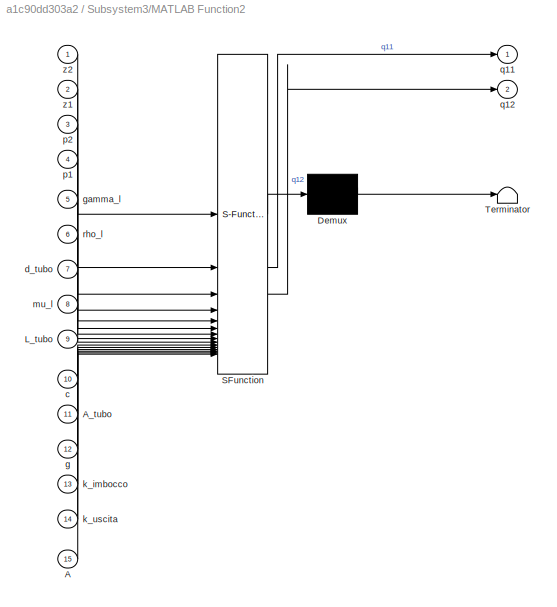
BLOCK [SubSystem] Subsystem3/MATLAB Function2
  ErrorFcn = Stateflow.Translate.translate
  LibrarySourceBlock = simulink/User-Defined\nFunctions/MATLAB Function
  PermitHierarchicalResolution = ExplicitOnly
  SFBlockType = MATLAB Function
  TreatAsAtomicUnit = on
BLOCK [Demux] Subsystem3/MATLAB Function2/ Demux 
  Outputs = 1
BLOCK [S-Function] Subsystem3/MATLAB Function2/ SFunction 
  EnableBusSupport = on
  FunctionName = sf_sfun
  PortCounts = [15 3]
  SFcnIsStateOwnerBlock = off
  SFunctionDeploymentMode = off
  Tag = Stateflow S-Function 1
BLOCK [Terminator] Subsystem3/MATLAB Function2/ Terminator 
BLOCK [Inport] Subsystem3/MATLAB Function2/A
  Port = 15
BLOCK [Inport] Subsystem3/MATLAB Function2/A_tubo
  Port = 11
BLOCK [Inport] Subsystem3/MATLAB Function2/L_tubo
  Port = 9
BLOCK [Inport] Subsystem3/MATLAB Function2/c
  Port = 10
BLOCK [Inport] Subsystem3/MATLAB Function2/d_tubo
  Port = 7
BLOCK [Inport] Subsystem3/MATLAB Function2/g
  Port = 12
BLOCK [Inport] Subsystem3/MATLAB Function2/gamma_l
  Port = 5
BLOCK [Inport] Subsystem3/MATLAB Function2/k_imbocco
  Port = 13
BLOCK [Inport] Subsystem3/MATLAB Function2/k_uscita
  Port = 14
BLOCK [Inport] Subsystem3/MATLAB Function2/mu_l
  Port = 8
BLOCK [Inport] Subsystem3/MATLAB Function2/p1
  Port = 4
BLOCK [Inport] Subsystem3/MATLAB Function2/p2
  Port = 3
BLOCK [Outport] Subsystem3/MATLAB Function2/q11
BLOCK [Outport] Subsystem3/MATLAB Function2/q12
  Port = 2
BLOCK [Inport] Subsystem3/MATLAB Function2/rho_l
  Port = 6
BLOCK [Inport] Subsystem3/MATLAB Function2/z1
  Port = 2
BLOCK [Inport] Subsystem3/MATLAB Function2/z2
BLOCK [Outport] Subsystem3/q11
  Port = 2
BLOCK [Outport] Subsystem3/q12
BLOCK [SubSystem] Subsystem4
BLOCK [Inport] Subsystem4/A
BLOCK [Constant] Subsystem4/Constant
  Value = rho_l
BLOCK [Constant] Subsystem4/Constant1
  Value = z2
BLOCK [Constant] Subsystem4/Constant10
  Value = k_imbocco
BLOCK [Constant] Subsystem4/Constant11
  Value = k_uscita
BLOCK [Constant] Subsystem4/Constant12
  Value = gamma_l
BLOCK [Constant] Subsystem4/Constant13
  Value = L_tubo
BLOCK [Constant] Subsystem4/Constant2
  Value = d_tubo
BLOCK [Constant] Subsystem4/Constant3
  Value = z1
BLOCK [Constant] Subsystem4/Constant4
  Value = p2
BLOCK [Constant] Subsystem4/Constant5
  Value = p1
BLOCK [Constant] Subsystem4/Constant6
  Value = mu_l
BLOCK [Constant] Subsystem4/Constant7
  Value = c
BLOCK [Constant] Subsystem4/Constant8
  Value = A_tubo
BLOCK [Constant] Subsystem4/Constant9
  Value = g
BLOCK [SubSystem] Subsystem4/MATLAB Function2
  ErrorFcn = Stateflow.Translate.translate
  LibrarySourceBlock = simulink/User-Defined\nFunctions/MATLAB Function
  PermitHierarchicalResolution = ExplicitOnly
  SFBlockType = MATLAB Function
  TreatAsAtomicUnit = on
BLOCK [Demux] Subsystem4/MATLAB Function2/ Demux 
  Outputs = 1
BLOCK [S-Function] Subsystem4/MATLAB Function2/ SFunction 
  EnableBusSupport = on
  FunctionName = sf_sfun
  PortCounts = [15 2]
  SFcnIsStateOwnerBlock = off
  SFunctionDeploymentMode = off
  Tag = Stateflow S-Function 6
BLOCK [Terminator] Subsystem4/MATLAB Function2/ Terminator 
BLOCK [Inport] Subsystem4/MATLAB Function2/A
  Port = 15
BLOCK [Inport] Subsystem4/MATLAB Function2/A_tubo
  Port = 11
BLOCK [Inport] Subsystem4/MATLAB Function2/L_tubo
  Port = 9
BLOCK [Inport] Subsystem4/MATLAB Function2/c
  Port = 10
BLOCK [Inport] Subsystem4/MATLAB Function2/d_tubo
  Port = 7
BLOCK [Inport] Subsystem4/MATLAB Function2/g
  Port = 12
BLOCK [Inport] Subsystem4/MATLAB Function2/gamma_l
  Port = 5
BLOCK [Inport] Subsystem4/MATLAB Function2/k_imbocco
  Port = 13
BLOCK [Inport] Subsystem4/MATLAB Function2/k_uscita
  Port = 14
BLOCK [Inport] Subsystem4/MATLAB Function2/mu_l
  Port = 8
BLOCK [Inport] Subsystem4/MATLAB Function2/p1
  Port = 4
BLOCK [Inport] Subsystem4/MATLAB Function2/p2
  Port = 3
BLOCK [Outport] Subsystem4/MATLAB Function2/q12
BLOCK [Inport] Subsystem4/MATLAB Function2/rho_l
  Port = 6
BLOCK [Inport] Subsystem4/MATLAB Function2/z1
  Port = 2
BLOCK [Inport] Subsystem4/MATLAB Function2/z2
BLOCK [Outport] Subsystem4/q12
BLOCK [SubSystem] Subsystem5
BLOCK [Inport] Subsystem5/A
BLOCK [Constant] Subsystem5/Constant
  Value = rho_l
BLOCK [Constant] Subsystem5/Constant1
  Value = z2
BLOCK [Constant] Subsystem5/Constant10
  Value = k_imbocco
BLOCK [Constant] Subsystem5/Constant11
  Value = k_uscita
BLOCK [Constant] Subsystem5/Constant12
  Value = gamma_l
BLOCK [Constant] Subsystem5/Constant13
  Value = L_tubo
BLOCK [Constant] Subsystem5/Constant2
  Value = d_tubo
BLOCK [Constant] Subsystem5/Constant3
  Value = z1
BLOCK [Constant] Subsystem5/Constant4
  Value = p2
BLOCK [Constant] Subsystem5/Constant5
  Value = p1
BLOCK [Constant] Subsystem5/Constant6
  Value = mu_l
BLOCK [Constant] Subsystem5/Constant7
  Value = c
BLOCK [Constant] Subsystem5/Constant8
  Value = A_tubo
BLOCK [Constant] Subsystem5/Constant9
  Value = g
BLOCK [SubSystem] Subsystem5/MATLAB Function2
  ErrorFcn = Stateflow.Translate.translate
  LibrarySourceBlock = simulink/User-Defined\nFunctions/MATLAB Function
  PermitHierarchicalResolution = ExplicitOnly
  SFBlockType = MATLAB Function
  TreatAsAtomicUnit = on
BLOCK [Demux] Subsystem5/MATLAB Function2/ Demux 
  Outputs = 1
BLOCK [S-Function] Subsystem5/MATLAB Function2/ SFunction 
  EnableBusSupport = on
  FunctionName = sf_sfun
  PortCounts = [15 2]
  SFcnIsStateOwnerBlock = off
  SFunctionDeploymentMode = off
  Tag = Stateflow S-Function 7
BLOCK [Terminator] Subsystem5/MATLAB Function2/ Terminator 
BLOCK [Inport] Subsystem5/MATLAB Function2/A
  Port = 15
BLOCK [Inport] Subsystem5/MATLAB Function2/A_tubo
  Port = 11
BLOCK [Inport] Subsystem5/MATLAB Function2/L_tubo
  Port = 9
BLOCK [Inport] Subsystem5/MATLAB Function2/c
  Port = 10
BLOCK [Inport] Subsystem5/MATLAB Function2/d_tubo
  Port = 7
BLOCK [Inport] Subsystem5/MATLAB Function2/g
  Port = 12
BLOCK [Inport] Subsystem5/MATLAB Function2/gamma_l
  Port = 5
BLOCK [Inport] Subsystem5/MATLAB Function2/k_imbocco
  Port = 13
BLOCK [Inport] Subsystem5/MATLAB Function2/k_uscita
  Port = 14
BLOCK [Inport] Subsystem5/MATLAB Function2/mu_l
  Port = 8
BLOCK [Inport] Subsystem5/MATLAB Function2/p1
  Port = 4
BLOCK [Inport] Subsystem5/MATLAB Function2/p2
  Port = 3
BLOCK [Outport] Subsystem5/MATLAB Function2/q12
BLOCK [Inport] Subsystem5/MATLAB Function2/rho_l
  Port = 6
BLOCK [Inport] Subsystem5/MATLAB Function2/z1
  Port = 2
BLOCK [Inport] Subsystem5/MATLAB Function2/z2
BLOCK [Outport] Subsystem5/q12
BLOCK [SubSystem] Subsystem6
BLOCK [Constant] Subsystem6/Constant1
  Value = theta_piccolo
BLOCK [Constant] Subsystem6/Constant3
  Value = theta_grande
  VectorParams1D = off
BLOCK [Constant] Subsystem6/Constant4
  Value = r_piccolo
BLOCK [Constant] Subsystem6/Constant5
  Value = r_grande
BLOCK [Constant] Subsystem6/Constant6
  Value = h_limite
BLOCK [SubSystem] Subsystem6/MATLAB Function2
  ErrorFcn = Stateflow.Translate.translate
  LibrarySourceBlock = simulink/User-Defined\nFunctions/MATLAB Function
  PermitHierarchicalResolution = ExplicitOnly
  SFBlockType = MATLAB Function
  TreatAsAtomicUnit = on
BLOCK [Demux] Subsystem6/MATLAB Function2/ Demux 
  Outputs = 1
BLOCK [S-Function] Subsystem6/MATLAB Function2/ SFunction 
  EnableBusSupport = on
  FunctionName = sf_sfun
  PortCounts = [4 2]
  SFcnIsStateOwnerBlock = off
  SFunctionDeploymentMode = off
  Tag = Stateflow S-Function 8
BLOCK [Terminator] Subsystem6/MATLAB Function2/ Terminator 
BLOCK [Inport] Subsystem6/MATLAB Function2/h_limite
  Port = 3
BLOCK [Inport] Subsystem6/MATLAB Function2/h_tappo
  Port = 4
BLOCK [Inport] Subsystem6/MATLAB Function2/r
  Port = 2
BLOCK [Outport] Subsystem6/MATLAB Function2/sezione_piccolo
BLOCK [Inport] Subsystem6/MATLAB Function2/theta
BLOCK [SubSystem] Subsystem6/MATLAB Function3
  ErrorFcn = Stateflow.Translate.translate
  LibrarySourceBlock = simulink/User-Defined\nFunctions/MATLAB Function
  PermitHierarchicalResolution = ExplicitOnly
  SFBlockType = MATLAB Function
  TreatAsAtomicUnit = on
BLOCK [Demux] Subsystem6/MATLAB Function3/ Demux 
  Outputs = 1
BLOCK [S-Function] Subsystem6/MATLAB Function3/ SFunction 
  EnableBusSupport = on
  FunctionName = sf_sfun
  PortCounts = [4 2]
  SFcnIsStateOwnerBlock = off
  SFunctionDeploymentMode = off
  Tag = Stateflow S-Function 9
BLOCK [Terminator] Subsystem6/MATLAB Function3/ Terminator 
BLOCK [Inport] Subsystem6/MATLAB Function3/h_limite
  Port = 3
BLOCK [Inport] Subsystem6/MATLAB Function3/h_tappo
  Port = 4
BLOCK [Inport] Subsystem6/MATLAB Function3/r
  Port = 2
BLOCK [Outport] Subsystem6/MATLAB Function3/sezione_grande
BLOCK [Inport] Subsystem6/MATLAB Function3/theta
BLOCK [Sum] Subsystem6/Sum1
BLOCK [Inport] Subsystem6/altezza tappo
BLOCK [Outport] Subsystem6/sezione
BLOCK [SubSystem] Subsystem7
BLOCK [Constant] Subsystem7/Constant1
  Value = theta_piccolo
BLOCK [Constant] Subsystem7/Constant3
  Value = theta_grande
  VectorParams1D = off
BLOCK [Constant] Subsystem7/Constant4
  Value = r_piccolo
BLOCK [Constant] Subsystem7/Constant5
  Value = r_grande
BLOCK [Constant] Subsystem7/Constant6
  Value = h_limite
BLOCK [SubSystem] Subsystem7/MATLAB Function2
  ErrorFcn = Stateflow.Translate.translate
  LibrarySourceBlock = simulink/User-Defined\nFunctions/MATLAB Function
  PermitHierarchicalResolution = ExplicitOnly
  SFBlockType = MATLAB Function
  TreatAsAtomicUnit = on
BLOCK [Demux] Subsystem7/MATLAB Function2/ Demux 
  Outputs = 1
BLOCK [S-Function] Subsystem7/MATLAB Function2/ SFunction 
  EnableBusSupport = on
  FunctionName = sf_sfun
  PortCounts = [4 2]
  SFcnIsStateOwnerBlock = off
  SFunctionDeploymentMode = off
  Tag = Stateflow S-Function 10
BLOCK [Terminator] Subsystem7/MATLAB Function2/ Terminator 
BLOCK [Inport] Subsystem7/MATLAB Function2/h_limite
  Port = 3
BLOCK [Inport] Subsystem7/MATLAB Function2/h_tappo
  Port = 4
BLOCK [Inport] Subsystem7/MATLAB Function2/r
  Port = 2
BLOCK [Outport] Subsystem7/MATLAB Function2/sezione_piccolo
BLOCK [Inport] Subsystem7/MATLAB Function2/theta
BLOCK [SubSystem] Subsystem7/MATLAB Function3
  ErrorFcn = Stateflow.Translate.translate
  LibrarySourceBlock = simulink/User-Defined\nFunctions/MATLAB Function
  PermitHierarchicalResolution = ExplicitOnly
  SFBlockType = MATLAB Function
  TreatAsAtomicUnit = on
BLOCK [Demux] Subsystem7/MATLAB Function3/ Demux 
  Outputs = 1
BLOCK [S-Function] Subsystem7/MATLAB Function3/ SFunction 
  EnableBusSupport = on
  FunctionName = sf_sfun
  PortCounts = [4 2]
  SFcnIsStateOwnerBlock = off
  SFunctionDeploymentMode = off
  Tag = Stateflow S-Function 11
BLOCK [Terminator] Subsystem7/MATLAB Function3/ Terminator 
BLOCK [Inport] Subsystem7/MATLAB Function3/h_limite
  Port = 3
BLOCK [Inport] Subsystem7/MATLAB Function3/h_tappo
  Port = 4
BLOCK [Inport] Subsystem7/MATLAB Function3/r
  Port = 2
BLOCK [Outport] Subsystem7/MATLAB Function3/sezione_grande
BLOCK [Inport] Subsystem7/MATLAB Function3/theta
BLOCK [Sum] Subsystem7/Sum1
BLOCK [Inport] Subsystem7/altezza tappo
BLOCK [Outport] Subsystem7/sezione
BLOCK [SubSystem] Subsystem8
BLOCK [Inport] Subsystem8/A
BLOCK [Constant] Subsystem8/Constant
  Value = rho_l
BLOCK [Constant] Subsystem8/Constant1
  Value = z2
BLOCK [Constant] Subsystem8/Constant10
  Value = k_imbocco
BLOCK [Constant] Subsystem8/Constant11
  Value = k_uscita
BLOCK [Constant] Subsystem8/Constant12
  Value = gamma_l
BLOCK [Constant] Subsystem8/Constant13
  Value = L_tubo
BLOCK [Constant] Subsystem8/Constant2
  Value = d_tubo
BLOCK [Constant] Subsystem8/Constant3
  Value = z1
BLOCK [Constant] Subsystem8/Constant4
  Value = p2
BLOCK [Constant] Subsystem8/Constant5
  Value = p1
BLOCK [Constant] Subsystem8/Constant6
  Value = mu_l
BLOCK [Constant] Subsystem8/Constant7
  Value = c
BLOCK [Constant] Subsystem8/Constant8
  Value = A_tubo
BLOCK [Constant] Subsystem8/Constant9
  Value = g
BLOCK [SubSystem] Subsystem8/MATLAB Function2
  ErrorFcn = Stateflow.Translate.translate
  LibrarySourceBlock = simulink/User-Defined\nFunctions/MATLAB Function
  PermitHierarchicalResolution = ExplicitOnly
  SFBlockType = MATLAB Function
  TreatAsAtomicUnit = on
BLOCK [Demux] Subsystem8/MATLAB Function2/ Demux 
  Outputs = 1
BLOCK [S-Function] Subsystem8/MATLAB Function2/ SFunction 
  EnableBusSupport = on
  FunctionName = sf_sfun
  PortCounts = [15 2]
  SFcnIsStateOwnerBlock = off
  SFunctionDeploymentMode = off
  Tag = Stateflow S-Function 12
BLOCK [Terminator] Subsystem8/MATLAB Function2/ Terminator 
BLOCK [Inport] Subsystem8/MATLAB Function2/A
  Port = 15
BLOCK [Inport] Subsystem8/MATLAB Function2/A_tubo
  Port = 11
BLOCK [Inport] Subsystem8/MATLAB Function2/L_tubo
  Port = 9
BLOCK [Inport] Subsystem8/MATLAB Function2/c
  Port = 10
BLOCK [Inport] Subsystem8/MATLAB Function2/d_tubo
  Port = 7
BLOCK [Inport] Subsystem8/MATLAB Function2/g
  Port = 12
BLOCK [Inport] Subsystem8/MATLAB Function2/gamma_l
  Port = 5
BLOCK [Inport] Subsystem8/MATLAB Function2/k_imbocco
  Port = 13
BLOCK [Inport] Subsystem8/MATLAB Function2/k_uscita
  Port = 14
BLOCK [Inport] Subsystem8/MATLAB Function2/mu_l
  Port = 8
BLOCK [Inport] Subsystem8/MATLAB Function2/p1
  Port = 4
BLOCK [Inport] Subsystem8/MATLAB Function2/p2
  Port = 3
BLOCK [Outport] Subsystem8/MATLAB Function2/q12
BLOCK [Inport] Subsystem8/MATLAB Function2/rho_l
  Port = 6
BLOCK [Inport] Subsystem8/MATLAB Function2/z1
  Port = 2
BLOCK [Inport] Subsystem8/MATLAB Function2/z2
BLOCK [Outport] Subsystem8/q12
BLOCK [SubSystem] Subsystem9
BLOCK [Constant] Subsystem9/Constant
  Value = r
BLOCK [Constant] Subsystem9/Constant1
  Value = l
BLOCK [Constant] Subsystem9/Constant2
  Value = mu
BLOCK [SubSystem] Subsystem9/MATLAB Function
  ErrorFcn = Stateflow.Translate.translate
  LibrarySourceBlock = simulink/User-Defined\nFunctions/MATLAB Function
  PermitHierarchicalResolution = ExplicitOnly
  SFBlockType = MATLAB Function
  TreatAsAtomicUnit = on
BLOCK [Demux] Subsystem9/MATLAB Function/ Demux 
  Outputs = 1
BLOCK [S-Function] Subsystem9/MATLAB Function/ SFunction 
  EnableBusSupport = on
  FunctionName = sf_sfun
  PortCounts = [4 2]
  SFcnIsStateOwnerBlock = off
  SFunctionDeploymentMode = off
  Tag = Stateflow S-Function 13
BLOCK [Terminator] Subsystem9/MATLAB Function/ Terminator 
BLOCK [Inport] Subsystem9/MATLAB Function/alpha
BLOCK [Outport] Subsystem9/MATLAB Function/h_tappo
BLOCK [Inport] Subsystem9/MATLAB Function/l
  Port = 3
BLOCK [Inport] Subsystem9/MATLAB Function/mu
  Port = 4
BLOCK [Inport] Subsystem9/MATLAB Function/r
  Port = 2
BLOCK [Outport] Subsystem9/altezza tappo
BLOCK [Inport] Subsystem9/angolo motore sat
BLOCK [Sum] Sum
  Inputs = |+-
BLOCK [Sum] Sum1
  Inputs = |+-
BLOCK [Sum] Sum2
  Inputs = |+-
BLOCK [VariableTransportDelay] Variable Transport Delay
  MaximumDelay = tau_max
BLOCK [VariableTransportDelay] Variable Transport Delay1
  MaximumDelay = tau_max
BLOCK [VariableTransportDelay] Variable Transport Delay2
  MaximumDelay = tau_max
BLOCK [Saturate] da settare dovuto a direzionatore di flusso che limita apertura massima1
  LowerLimit = 0
  UpperLimit = 100
BLOCK [Saturate] da settare dovuto a direzionatore di flusso che limita apertura massima2
  LowerLimit = 0
  UpperLimit = 100
BLOCK [Saturate] da settare dovuto a direzionatore di flusso che limita apertura massima3
  LowerLimit = 0
  UpperLimit = 100
BLOCK [Saturate] da settare dovuto a direzionatore di flusso che limita apertura massima4
  LowerLimit = 0
  UpperLimit = 100
BLOCK [Saturate] da settare dovuto a direzionatore di flusso che limita apertura massima5
  LowerLimit = 0
  UpperLimit = 100
BLOCK [Saturate] da settare dovuto a direzionatore di flusso che limita apertura massima6
  LowerLimit = 0
  UpperLimit = 100
BLOCK [Gain] kg to m
  Gain = kg_to_m
  Multiplication = Matrix(u*K)
BLOCK [Gain] kg to m1
  Gain = kg_to_m
  Multiplication = Matrix(u*K)
BLOCK [Gain] kg to m2
  Gain = kg_to_m
  Multiplication = Matrix(u*K)
BLOCK [Gain] m to kg
  Gain = m_to_kg
BLOCK [Gain] m to kg1
  Gain = m_to_kg
BLOCK [Gain] m to kg2
  Gain = m_to_kg
BLOCK [Gain] m^3//s to m//s
  Gain = 1/base_barile
  Multiplication = Matrix(u*K)
BLOCK [Gain] m^3//s to m//s1
  Gain = 1/base_barile
  Multiplication = Matrix(u*K)
BLOCK [Gain] m^3//s to m//s2
  Gain = 1/base_barile
  Multiplication = Matrix(u*K)
BLOCK [Gain] regolatore proporzionale
  Gain = k
  Multiplication = Matrix(u*K)
BLOCK [Gain] regolatore proporzionale1
  Gain = k
  Multiplication = Matrix(u*K)
BLOCK [Gain] regolatore proporzionale2
  Gain = k
  Multiplication = Matrix(u*K)
ANNOTATION (root): aggiustare angoli saturazione così che all'angolo minimo altezza tappo sia zero
ANNOTATION Subsystem1: sistemare
ANNOTATION Subsystem10: sistemare
ANNOTATION Subsystem17: sistemare
ANNOTATION Subsystem2: sistemare
ANNOTATION Subsystem20: sistemare
ANNOTATION Subsystem9: sistemare
LINE Constant1:1 -> MATLAB Function2:2
LINE Constant2:1 -> MATLAB Function1:2
LINE Constant3:1 -> MATLAB Function3:2
NET Integrator1:1 -> MATLAB Function2:1, Scope21:2, m to kg1:1
NET Integrator2:1 -> MATLAB Function3:1, Scope27:2, m to kg2:1
NET Integrator:1 -> MATLAB Function1:1, Scope:2, m to kg:1
NET MATLAB Function1:1 -> Scope2:1, Variable Transport Delay:2
NET MATLAB Function2:1 -> Scope24:1, Variable Transport Delay1:2
NET MATLAB Function3:1 -> Scope30:1, Variable Transport Delay2:2
LINE Ramp1:1 -> Subsystem3:1
LINE Ramp2:1 -> Subsystem4:1
LINE Ramp3:1 -> da settare dovuto a direzionatore di flusso che limita apertura massima1:1
NET Ramp4:1 -> Scope9:1, Subsystem6:1
LINE Ramp5:1 -> Subsystem7:1
NET Ramp6:1 -> Scope10:1, Subsystem9:1
LINE Ramp7:1 -> Saturation1:1
LINE Ramp8:1 -> Saturation2:1
NET Saturation1:1 -> Scope14:1, Subsystem10:1
NET Saturation2:1 -> Scope1:1, Subsystem1:1
NET Saturation3:1 -> Scope5:1, Subsystem2:1
NET Saturation4:1 -> Scope26:1, Subsystem17:1
NET Saturation5:1 -> Scope32:1, Subsystem20:1
NET Step1:1 -> Scope25:1, Sum1:1, kg to m1:1
NET Step2:1 -> Scope31:1, Sum2:1, kg to m2:1
NET Step:1 -> Scope20:1, Scope33:1, Sum:1, kg to m:1
LINE Subsystem1/Constant1:1 -> Subsystem1/MATLAB Function:3
LINE Subsystem1/Constant2:1 -> Subsystem1/MATLAB Function:4
LINE Subsystem1/Constant:1 -> Subsystem1/MATLAB Function:2
LINE Subsystem1/MATLAB Function:1 -> Subsystem1/altezza tappo:1
LINE Subsystem1/angolo motore sat:1 -> Subsystem1/MATLAB Function:1
LINE Subsystem10/Constant1:1 -> Subsystem10/MATLAB Function:3
LINE Subsystem10/Constant2:1 -> Subsystem10/MATLAB Function:4
LINE Subsystem10/Constant:1 -> Subsystem10/MATLAB Function:2
LINE Subsystem10/MATLAB Function:1 -> Subsystem10/altezza tappo:1
LINE Subsystem10/angolo motore sat:1 -> Subsystem10/MATLAB Function:1
LINE Subsystem10:1 -> Scope15:1
LINE Subsystem11/Constant1:1 -> Subsystem11/MATLAB Function2:1
LINE Subsystem11/Constant3:1 -> Subsystem11/MATLAB Function3:1
LINE Subsystem11/Constant4:1 -> Subsystem11/MATLAB Function2:2
LINE Subsystem11/Constant5:1 -> Subsystem11/MATLAB Function3:2
NET Subsystem11/Constant6:1 -> Subsystem11/MATLAB Function2:3, Subsystem11/MATLAB Function3:3
LINE Subsystem11/MATLAB Function2:1 -> Subsystem11/Sum1:1
LINE Subsystem11/MATLAB Function3:1 -> Subsystem11/Sum1:2
LINE Subsystem11/Sum1:1 -> Subsystem11/sezione:1
NET Subsystem11/altezza tappo:1 -> Subsystem11/MATLAB Function2:4, Subsystem11/MATLAB Function3:4
LINE Subsystem11:1 -> da settare dovuto a direzionatore di flusso che limita apertura massima3:1
LINE Subsystem12/A:1 -> Subsystem12/MATLAB Function2:15
LINE Subsystem12/Constant10:1 -> Subsystem12/MATLAB Function2:13
LINE Subsystem12/Constant11:1 -> Subsystem12/MATLAB Function2:14
LINE Subsystem12/Constant12:1 -> Subsystem12/MATLAB Function2:5
LINE Subsystem12/Constant13:1 -> Subsystem12/MATLAB Function2:9
LINE Subsystem12/Constant1:1 -> Subsystem12/MATLAB Function2:1
LINE Subsystem12/Constant2:1 -> Subsystem12/MATLAB Function2:7
LINE Subsystem12/Constant3:1 -> Subsystem12/MATLAB Function2:2
LINE Subsystem12/Constant4:1 -> Subsystem12/MATLAB Function2:3
LINE Subsystem12/Constant5:1 -> Subsystem12/MATLAB Function2:4
LINE Subsystem12/Constant6:1 -> Subsystem12/MATLAB Function2:8
LINE Subsystem12/Constant7:1 -> Subsystem12/MATLAB Function2:10
LINE Subsystem12/Constant8:1 -> Subsystem12/MATLAB Function2:11
LINE Subsystem12/Constant9:1 -> Subsystem12/MATLAB Function2:12
LINE Subsystem12/Constant:1 -> Subsystem12/MATLAB Function2:6
LINE Subsystem12/MATLAB Function2:1 -> Subsystem12/q12:1
LINE Subsystem12:1 -> Scope17:1
LINE Subsystem13/Constant1:1 -> Subsystem13/MATLAB Function2:1
LINE Subsystem13/Constant3:1 -> Subsystem13/MATLAB Function3:1
LINE Subsystem13/Constant4:1 -> Subsystem13/MATLAB Function2:2
LINE Subsystem13/Constant5:1 -> Subsystem13/MATLAB Function3:2
NET Subsystem13/Constant6:1 -> Subsystem13/MATLAB Function2:3, Subsystem13/MATLAB Function3:3
LINE Subsystem13/MATLAB Function2:1 -> Subsystem13/Sum1:1
LINE Subsystem13/MATLAB Function3:1 -> Subsystem13/Sum1:2
LINE Subsystem13/Sum1:1 -> Subsystem13/sezione:1
NET Subsystem13/altezza tappo:1 -> Subsystem13/MATLAB Function2:4, Subsystem13/MATLAB Function3:4
LINE Subsystem13:1 -> da settare dovuto a direzionatore di flusso che limita apertura massima4:1
LINE Subsystem14/A:1 -> Subsystem14/MATLAB Function2:15
LINE Subsystem14/Constant10:1 -> Subsystem14/MATLAB Function2:13
LINE Subsystem14/Constant11:1 -> Subsystem14/MATLAB Function2:14
LINE Subsystem14/Constant12:1 -> Subsystem14/MATLAB Function2:5
LINE Subsystem14/Constant13:1 -> Subsystem14/MATLAB Function2:9
LINE Subsystem14/Constant1:1 -> Subsystem14/MATLAB Function2:1
LINE Subsystem14/Constant2:1 -> Subsystem14/MATLAB Function2:7
LINE Subsystem14/Constant3:1 -> Subsystem14/MATLAB Function2:2
LINE Subsystem14/Constant4:1 -> Subsystem14/MATLAB Function2:3
LINE Subsystem14/Constant5:1 -> Subsystem14/MATLAB Function2:4
LINE Subsystem14/Constant6:1 -> Subsystem14/MATLAB Function2:8
LINE Subsystem14/Constant7:1 -> Subsystem14/MATLAB Function2:10
LINE Subsystem14/Constant8:1 -> Subsystem14/MATLAB Function2:11
LINE Subsystem14/Constant9:1 -> Subsystem14/MATLAB Function2:12
LINE Subsystem14/Constant:1 -> Subsystem14/MATLAB Function2:6
LINE Subsystem14/MATLAB Function2:1 -> Subsystem14/q [m^3//s]:1
LINE Subsystem14:1 -> Variable Transport Delay:1
LINE Subsystem15/Constant1:1 -> Subsystem15/MATLAB Function2:1
LINE Subsystem15/Constant3:1 -> Subsystem15/MATLAB Function3:1
LINE Subsystem15/Constant4:1 -> Subsystem15/MATLAB Function2:2
LINE Subsystem15/Constant5:1 -> Subsystem15/MATLAB Function3:2
NET Subsystem15/Constant6:1 -> Subsystem15/MATLAB Function2:3, Subsystem15/MATLAB Function3:3
LINE Subsystem15/MATLAB Function2:1 -> Subsystem15/Sum1:1
LINE Subsystem15/MATLAB Function3:1 -> Subsystem15/Sum1:2
LINE Subsystem15/Sum1:1 -> Subsystem15/sezione:1
NET Subsystem15/altezza tappo:1 -> Subsystem15/MATLAB Function2:4, Subsystem15/MATLAB Function3:4
LINE Subsystem15:1 -> da settare dovuto a direzionatore di flusso che limita apertura massima5:1
LINE Subsystem16/A:1 -> Subsystem16/MATLAB Function2:15
LINE Subsystem16/Constant10:1 -> Subsystem16/MATLAB Function2:13
LINE Subsystem16/Constant11:1 -> Subsystem16/MATLAB Function2:14
LINE Subsystem16/Constant12:1 -> Subsystem16/MATLAB Function2:5
LINE Subsystem16/Constant13:1 -> Subsystem16/MATLAB Function2:9
LINE Subsystem16/Constant1:1 -> Subsystem16/MATLAB Function2:1
LINE Subsystem16/Constant2:1 -> Subsystem16/MATLAB Function2:7
LINE Subsystem16/Constant3:1 -> Subsystem16/MATLAB Function2:2
LINE Subsystem16/Constant4:1 -> Subsystem16/MATLAB Function2:3
LINE Subsystem16/Constant5:1 -> Subsystem16/MATLAB Function2:4
LINE Subsystem16/Constant6:1 -> Subsystem16/MATLAB Function2:8
LINE Subsystem16/Constant7:1 -> Subsystem16/MATLAB Function2:10
LINE Subsystem16/Constant8:1 -> Subsystem16/MATLAB Function2:11
LINE Subsystem16/Constant9:1 -> Subsystem16/MATLAB Function2:12
LINE Subsystem16/Constant:1 -> Subsystem16/MATLAB Function2:6
LINE Subsystem16/MATLAB Function2:1 -> Subsystem16/q [m^3//s]:1
LINE Subsystem16:1 -> Variable Transport Delay1:1
LINE Subsystem17/Constant1:1 -> Subsystem17/MATLAB Function:3
LINE Subsystem17/Constant2:1 -> Subsystem17/MATLAB Function:4
LINE Subsystem17/Constant:1 -> Subsystem17/MATLAB Function:2
LINE Subsystem17/MATLAB Function:1 -> Subsystem17/altezza tappo:1
LINE Subsystem17/angolo motore sat:1 -> Subsystem17/MATLAB Function:1
LINE Subsystem17:1 -> Subsystem15:1
LINE Subsystem18/Constant1:1 -> Subsystem18/MATLAB Function2:1
LINE Subsystem18/Constant3:1 -> Subsystem18/MATLAB Function3:1
LINE Subsystem18/Constant4:1 -> Subsystem18/MATLAB Function2:2
LINE Subsystem18/Constant5:1 -> Subsystem18/MATLAB Function3:2
NET Subsystem18/Constant6:1 -> Subsystem18/MATLAB Function2:3, Subsystem18/MATLAB Function3:3
LINE Subsystem18/MATLAB Function2:1 -> Subsystem18/Sum1:1
LINE Subsystem18/MATLAB Function3:1 -> Subsystem18/Sum1:2
LINE Subsystem18/Sum1:1 -> Subsystem18/sezione:1
NET Subsystem18/altezza tappo:1 -> Subsystem18/MATLAB Function2:4, Subsystem18/MATLAB Function3:4
LINE Subsystem18:1 -> da settare dovuto a direzionatore di flusso che limita apertura massima6:1
LINE Subsystem19/A:1 -> Subsystem19/MATLAB Function2:15
LINE Subsystem19/Constant10:1 -> Subsystem19/MATLAB Function2:13
LINE Subsystem19/Constant11:1 -> Subsystem19/MATLAB Function2:14
LINE Subsystem19/Constant12:1 -> Subsystem19/MATLAB Function2:5
LINE Subsystem19/Constant13:1 -> Subsystem19/MATLAB Function2:9
LINE Subsystem19/Constant1:1 -> Subsystem19/MATLAB Function2:1
LINE Subsystem19/Constant2:1 -> Subsystem19/MATLAB Function2:7
LINE Subsystem19/Constant3:1 -> Subsystem19/MATLAB Function2:2
LINE Subsystem19/Constant4:1 -> Subsystem19/MATLAB Function2:3
LINE Subsystem19/Constant5:1 -> Subsystem19/MATLAB Function2:4
LINE Subsystem19/Constant6:1 -> Subsystem19/MATLAB Function2:8
LINE Subsystem19/Constant7:1 -> Subsystem19/MATLAB Function2:10
LINE Subsystem19/Constant8:1 -> Subsystem19/MATLAB Function2:11
LINE Subsystem19/Constant9:1 -> Subsystem19/MATLAB Function2:12
LINE Subsystem19/Constant:1 -> Subsystem19/MATLAB Function2:6
LINE Subsystem19/MATLAB Function2:1 -> Subsystem19/q [m^3//s]:1
LINE Subsystem19:1 -> Variable Transport Delay2:1
LINE Subsystem1:1 -> Subsystem11:1
LINE Subsystem2/Constant1:1 -> Subsystem2/MATLAB Function:3
LINE Subsystem2/Constant2:1 -> Subsystem2/MATLAB Function:4
LINE Subsystem2/Constant:1 -> Subsystem2/MATLAB Function:2
LINE Subsystem2/MATLAB Function:1 -> Subsystem2/altezza tappo:1
LINE Subsystem2/angolo motore sat:1 -> Subsystem2/MATLAB Function:1
LINE Subsystem20/Constant1:1 -> Subsystem20/MATLAB Function:3
LINE Subsystem20/Constant2:1 -> Subsystem20/MATLAB Function:4
LINE Subsystem20/Constant:1 -> Subsystem20/MATLAB Function:2
LINE Subsystem20/MATLAB Function:1 -> Subsystem20/altezza tappo:1
LINE Subsystem20/angolo motore sat:1 -> Subsystem20/MATLAB Function:1
LINE Subsystem20:1 -> Subsystem18:1
LINE Subsystem2:1 -> Subsystem13:1
LINE Subsystem3/A:1 -> Subsystem3/MATLAB Function2:15
LINE Subsystem3/Constant10:1 -> Subsystem3/MATLAB Function2:13
LINE Subsystem3/Constant11:1 -> Subsystem3/MATLAB Function2:14
LINE Subsystem3/Constant12:1 -> Subsystem3/MATLAB Function2:5
LINE Subsystem3/Constant13:1 -> Subsystem3/MATLAB Function2:9
LINE Subsystem3/Constant1:1 -> Subsystem3/MATLAB Function2:1
LINE Subsystem3/Constant2:1 -> Subsystem3/MATLAB Function2:7
LINE Subsystem3/Constant3:1 -> Subsystem3/MATLAB Function2:2
LINE Subsystem3/Constant4:1 -> Subsystem3/MATLAB Function2:3
LINE Subsystem3/Constant5:1 -> Subsystem3/MATLAB Function2:4
LINE Subsystem3/Constant6:1 -> Subsystem3/MATLAB Function2:8
LINE Subsystem3/Constant7:1 -> Subsystem3/MATLAB Function2:10
LINE Subsystem3/Constant8:1 -> Subsystem3/MATLAB Function2:11
LINE Subsystem3/Constant9:1 -> Subsystem3/MATLAB Function2:12
LINE Subsystem3/Constant:1 -> Subsystem3/MATLAB Function2:6
LINE Subsystem3/MATLAB Function2:1 -> Subsystem3/q11:1
LINE Subsystem3/MATLAB Function2:2 -> Subsystem3/q12:1
LINE Subsystem3:1 -> Scope3:1
LINE Subsystem3:2 -> Scope3:2
LINE Subsystem4/A:1 -> Subsystem4/MATLAB Function2:15
LINE Subsystem4/Constant10:1 -> Subsystem4/MATLAB Function2:13
LINE Subsystem4/Constant11:1 -> Subsystem4/MATLAB Function2:14
LINE Subsystem4/Constant12:1 -> Subsystem4/MATLAB Function2:5
LINE Subsystem4/Constant13:1 -> Subsystem4/MATLAB Function2:9
LINE Subsystem4/Constant1:1 -> Subsystem4/MATLAB Function2:1
LINE Subsystem4/Constant2:1 -> Subsystem4/MATLAB Function2:7
LINE Subsystem4/Constant3:1 -> Subsystem4/MATLAB Function2:2
LINE Subsystem4/Constant4:1 -> Subsystem4/MATLAB Function2:3
LINE Subsystem4/Constant5:1 -> Subsystem4/MATLAB Function2:4
LINE Subsystem4/Constant6:1 -> Subsystem4/MATLAB Function2:8
LINE Subsystem4/Constant7:1 -> Subsystem4/MATLAB Function2:10
LINE Subsystem4/Constant8:1 -> Subsystem4/MATLAB Function2:11
LINE Subsystem4/Constant9:1 -> Subsystem4/MATLAB Function2:12
LINE Subsystem4/Constant:1 -> Subsystem4/MATLAB Function2:6
LINE Subsystem4/MATLAB Function2:1 -> Subsystem4/q12:1
LINE Subsystem4:1 -> Scope4:1
LINE Subsystem5/A:1 -> Subsystem5/MATLAB Function2:15
LINE Subsystem5/Constant10:1 -> Subsystem5/MATLAB Function2:13
LINE Subsystem5/Constant11:1 -> Subsystem5/MATLAB Function2:14
LINE Subsystem5/Constant12:1 -> Subsystem5/MATLAB Function2:5
LINE Subsystem5/Constant13:1 -> Subsystem5/MATLAB Function2:9
LINE Subsystem5/Constant1:1 -> Subsystem5/MATLAB Function2:1
LINE Subsystem5/Constant2:1 -> Subsystem5/MATLAB Function2:7
LINE Subsystem5/Constant3:1 -> Subsystem5/MATLAB Function2:2
LINE Subsystem5/Constant4:1 -> Subsystem5/MATLAB Function2:3
LINE Subsystem5/Constant5:1 -> Subsystem5/MATLAB Function2:4
LINE Subsystem5/Constant6:1 -> Subsystem5/MATLAB Function2:8
LINE Subsystem5/Constant7:1 -> Subsystem5/MATLAB Function2:10
LINE Subsystem5/Constant8:1 -> Subsystem5/MATLAB Function2:11
LINE Subsystem5/Constant9:1 -> Subsystem5/MATLAB Function2:12
LINE Subsystem5/Constant:1 -> Subsystem5/MATLAB Function2:6
LINE Subsystem5/MATLAB Function2:1 -> Subsystem5/q12:1
LINE Subsystem5:1 -> Scope7:1
LINE Subsystem6/Constant1:1 -> Subsystem6/MATLAB Function2:1
LINE Subsystem6/Constant3:1 -> Subsystem6/MATLAB Function3:1
LINE Subsystem6/Constant4:1 -> Subsystem6/MATLAB Function2:2
LINE Subsystem6/Constant5:1 -> Subsystem6/MATLAB Function3:2
NET Subsystem6/Constant6:1 -> Subsystem6/MATLAB Function2:3, Subsystem6/MATLAB Function3:3
LINE Subsystem6/MATLAB Function2:1 -> Subsystem6/Sum1:1
LINE Subsystem6/MATLAB Function3:1 -> Subsystem6/Sum1:2
LINE Subsystem6/Sum1:1 -> Subsystem6/sezione:1
NET Subsystem6/altezza tappo:1 -> Subsystem6/MATLAB Function2:4, Subsystem6/MATLAB Function3:4
LINE Subsystem6:1 -> Scope8:1
LINE Subsystem7/Constant1:1 -> Subsystem7/MATLAB Function2:1
LINE Subsystem7/Constant3:1 -> Subsystem7/MATLAB Function3:1
LINE Subsystem7/Constant4:1 -> Subsystem7/MATLAB Function2:2
LINE Subsystem7/Constant5:1 -> Subsystem7/MATLAB Function3:2
NET Subsystem7/Constant6:1 -> Subsystem7/MATLAB Function2:3, Subsystem7/MATLAB Function3:3
LINE Subsystem7/MATLAB Function2:1 -> Subsystem7/Sum1:1
LINE Subsystem7/MATLAB Function3:1 -> Subsystem7/Sum1:2
LINE Subsystem7/Sum1:1 -> Subsystem7/sezione:1
NET Subsystem7/altezza tappo:1 -> Subsystem7/MATLAB Function2:4, Subsystem7/MATLAB Function3:4
LINE Subsystem7:1 -> da settare dovuto a direzionatore di flusso che limita apertura massima2:1
LINE Subsystem8/A:1 -> Subsystem8/MATLAB Function2:15
LINE Subsystem8/Constant10:1 -> Subsystem8/MATLAB Function2:13
LINE Subsystem8/Constant11:1 -> Subsystem8/MATLAB Function2:14
LINE Subsystem8/Constant12:1 -> Subsystem8/MATLAB Function2:5
LINE Subsystem8/Constant13:1 -> Subsystem8/MATLAB Function2:9
LINE Subsystem8/Constant1:1 -> Subsystem8/MATLAB Function2:1
LINE Subsystem8/Constant2:1 -> Subsystem8/MATLAB Function2:7
LINE Subsystem8/Constant3:1 -> Subsystem8/MATLAB Function2:2
LINE Subsystem8/Constant4:1 -> Subsystem8/MATLAB Function2:3
LINE Subsystem8/Constant5:1 -> Subsystem8/MATLAB Function2:4
LINE Subsystem8/Constant6:1 -> Subsystem8/MATLAB Function2:8
LINE Subsystem8/Constant7:1 -> Subsystem8/MATLAB Function2:10
LINE Subsystem8/Constant8:1 -> Subsystem8/MATLAB Function2:11
LINE Subsystem8/Constant9:1 -> Subsystem8/MATLAB Function2:12
LINE Subsystem8/Constant:1 -> Subsystem8/MATLAB Function2:6
LINE Subsystem8/MATLAB Function2:1 -> Subsystem8/q12:1
LINE Subsystem8:1 -> Scope12:1
LINE Subsystem9/Constant1:1 -> Subsystem9/MATLAB Function:3
LINE Subsystem9/Constant2:1 -> Subsystem9/MATLAB Function:4
LINE Subsystem9/Constant:1 -> Subsystem9/MATLAB Function:2
LINE Subsystem9/MATLAB Function:1 -> Subsystem9/altezza tappo:1
LINE Subsystem9/angolo motore sat:1 -> Subsystem9/MATLAB Function:1
LINE Subsystem9:1 -> Scope13:1
LINE Sum1:1 -> regolatore proporzionale1:1
LINE Sum2:1 -> regolatore proporzionale2:1
LINE Sum:1 -> regolatore proporzionale:1
LINE Variable Transport Delay1:1 -> m^3//s to m//s1:1
LINE Variable Transport Delay2:1 -> m^3//s to m//s2:1
LINE Variable Transport Delay:1 -> m^3//s to m//s:1
NET da settare dovuto a direzionatore di flusso che limita apertura massima1:1 -> Scope6:1, Subsystem5:1
NET da settare dovuto a direzionatore di flusso che limita apertura massima2:1 -> Scope11:1, Subsystem8:1
NET da settare dovuto a direzionatore di flusso che limita apertura massima3:1 -> Scope16:1, Subsystem12:1
NET da settare dovuto a direzionatore di flusso che limita apertura massima4:1 -> Scope18:1, Subsystem14:1
NET da settare dovuto a direzionatore di flusso che limita apertura massima5:1 -> Scope22:1, Subsystem16:1
NET da settare dovuto a direzionatore di flusso che limita apertura massima6:1 -> Scope28:1, Subsystem19:1
LINE kg to m1:1 -> Scope21:1
LINE kg to m2:1 -> Scope27:1
LINE kg to m:1 -> Scope:1
NET m to kg1:1 -> Scope25:2, Scope33:3, Sum1:2
NET m to kg2:1 -> Scope31:2, Scope33:4, Sum2:2
NET m to kg:1 -> Scope20:2, Scope33:2, Sum:2
LINE m^3//s to m//s1:1 -> Integrator1:1
LINE m^3//s to m//s2:1 -> Integrator2:1
LINE m^3//s to m//s:1 -> Integrator:1
NET regolatore proporzionale1:1 -> Saturation4:1, Scope23:1
NET regolatore proporzionale2:1 -> Saturation5:1, Scope29:1
NET regolatore proporzionale:1 -> Saturation3:1, Scope19:1
note: NET lines group one-source signal fan-out (src -> all destinations, sorted); 1:1 wires keep LINE
CHART Subsystem5/MATLAB Function2 states=1 transitions=1
  STATE_LABEL 'eML_blk_kernel()'
  STATE_LABEL 'SCRIPT:\nfunction q12 = fcn(z2, z1, p2, p1, gamma_l, rho_l, d_tubo, mu_l, L_tubo, c, A_tubo, g, k_imbocco, k_uscita, A)\n\nk_visc_p = (64*L_tubo) / (rho_l*(d_tubo/mu_l)*(c*A)/A_tubo) * (L_tubo/d_tubo);\ncaa = (c*A/A_tubo)^2;\n\nAA = -(k_imbocco*caa+k_uscita+1)/(2*g);\nBB = -k_visc_p*caa/(2*g);\nCC = (z2-z1)+(p2-p1)/gamma_l;\n\nv12 = (-BB - sqrt(BB^2-4*AA*CC)) / (2*AA);\n\nif isnan(v12);\n   v12 = 0;\nend\n\nq12 =...<+11ch>'  <repeated x7 — deduplicated; at blocks: MATLAB Function2>
CHART Subsystem6/MATLAB Function2 states=1 transitions=1
  STATE_LABEL 'eML_blk_kernel()'
  STATE_LABEL 'SCRIPT:\nfunction sezione_piccolo = altezza_sezione_piccolo(theta, r, h_limite, h_tappo)\n\nif h_tappo >= h_limite\n    h_tappo = h_limite;     % questa sezione non si apre di più quando si apre il grande\nend\n\n\nm = tan(theta);\ny0 = r * m;\n\nxg = r;\nyg = y0;\n\na = sin(pi/2 - theta) * h_tappo;\n\nxr = r - a * sin(theta);\nyr = y0+a*cos(theta);\n\n\nsezione_piccolo = pi * (xg - xr) * a;\n'  <repeated x6 — deduplicated; at blocks: MATLAB Function2>
CHART Subsystem6/MATLAB Function3 states=1 transitions=1
  STATE_LABEL 'eML_blk_kernel()'
  STATE_LABEL 'SCRIPT:\nfunction sezione_grande = altezza_sezione_grande(theta, r, h_limite, h_tappo)\n\nif h_tappo < h_limite\n    h_tappo = 0;    \nelse\n    h_tappo = h_tappo - h_limite;\nend\n\nm = tan(theta);\ny0 = r * m;\n\nxg = r;\nyg = y0;\n\na = sin(pi/2 - theta) * h_tappo;\n\nxr = r - a * sin(theta);\nyr = y0+a*cos(theta);\n\n\nsezione_grande = pi * (xg - xr) * a;\n'  <repeated x6 — deduplicated; at blocks: MATLAB Function3>
CHART Subsystem7/MATLAB Function2 states=1 transitions=1
  STATE_LABEL 'eML_blk_kernel()'
CHART Subsystem7/MATLAB Function3 states=1 transitions=1
  STATE_LABEL 'eML_blk_kernel()'
CHART Subsystem8/MATLAB Function2 states=1 transitions=1
  STATE_LABEL 'eML_blk_kernel()'
CHART Subsystem9/MATLAB Function states=1 transitions=1
  STATE_LABEL 'eML_blk_kernel()'
  STATE_LABEL 'SCRIPT:\n\nfunction h_tappo = manovellismo(alpha, r, l, mu)\n\nh_tappo = (r+l) - (r*cos(alpha) + l/mu*sqrt(mu^2-sin(alpha)^2))\n\nend\n\n\n'
CHART Subsystem10/MATLAB Function states=1 transitions=1
  STATE_LABEL 'eML_blk_kernel()'
  STATE_LABEL 'SCRIPT:\n\nfunction h_tappo = manovellismo(alpha, r, l, mu)\n\nh_tappo = (r+l) - (r*cos(alpha) + l/mu*sqrt(mu^2-sin(alpha)^2))\n\nend\n\n\n'
CHART Subsystem11/MATLAB Function2 states=1 transitions=1
  STATE_LABEL 'eML_blk_kernel()'
CHART Subsystem11/MATLAB Function3 states=1 transitions=1
  STATE_LABEL 'eML_blk_kernel()'
CHART Subsystem12/MATLAB Function2 states=1 transitions=1
  STATE_LABEL 'eML_blk_kernel()'
CHART Subsystem14/MATLAB Function2 states=1 transitions=1
  STATE_LABEL 'eML_blk_kernel()'
CHART Subsystem3/MATLAB Function2 states=1 transitions=1
  STATE_LABEL 'eML_blk_kernel()'
  STATE_LABEL 'SCRIPT:\nfunction [q11, q12] = fcn(z2, z1, p2, p1, gamma_l, rho_l, d_tubo, mu_l, L_tubo, c, A_tubo, g, k_imbocco, k_uscita, A)\n\nk_visc_p = (64*L_tubo) / (rho_l*(d_tubo/mu_l)*(c*A)/A_tubo) * (L_tubo/d_tubo);\ncaa = (c*A/A_tubo)^2;\n\nAA = -(k_imbocco*caa+k_uscita+1)/(2*g);\nBB = -k_visc_p*caa/(2*g);\nCC = (z2-z1)+(p2-p1)/gamma_l;\n\nv11 = (-BB + sqrt(BB^2-4*AA*CC)) / (2*AA); % col - veniva soluzione negati...<+142ch>'
CHART Subsystem2/MATLAB Function states=1 transitions=1
  STATE_LABEL 'eML_blk_kernel()'
  STATE_LABEL 'SCRIPT:\n\nfunction h_tappo = manovellismo(alpha, r, l, mu)\n\nh_tappo = (r+l) - (r*cos(alpha) + l/mu*sqrt(mu^2-sin(alpha)^2))\n\nend\n\n\n'
CHART MATLAB Function2 states=1 transitions=1
  STATE_LABEL 'eML_blk_kernel()'
  STATE_LABEL 'SCRIPT:\nfunction tau = variable_delay(altezza_liquido, L)\n\n    \ntau = sqrt(2* (L - ( altezza_liquido) ) / 9.81);\n'
CHART Subsystem15/MATLAB Function2 states=1 transitions=1
  STATE_LABEL 'eML_blk_kernel()'
CHART Subsystem15/MATLAB Function3 states=1 transitions=1
  STATE_LABEL 'eML_blk_kernel()'
CHART Subsystem16/MATLAB Function2 states=1 transitions=1
  STATE_LABEL 'eML_blk_kernel()'
CHART Subsystem17/MATLAB Function states=1 transitions=1
  STATE_LABEL 'eML_blk_kernel()'
  STATE_LABEL 'SCRIPT:\n\nfunction h_tappo = manovellismo(alpha, r, l, mu)\n\nh_tappo = (r+l) - (r*cos(alpha) + l/mu*sqrt(mu^2-sin(alpha)^2))\n\nend\n\n\n'
CHART MATLAB Function3 states=1 transitions=1
  STATE_LABEL 'eML_blk_kernel()'
  STATE_LABEL 'SCRIPT:\nfunction tau = variable_delay(altezza_liquido, L)\n\n    \ntau = sqrt(2* (L - ( altezza_liquido) ) / 9.81);\n'
CHART Subsystem18/MATLAB Function2 states=1 transitions=1
  STATE_LABEL 'eML_blk_kernel()'
CHART Subsystem18/MATLAB Function3 states=1 transitions=1
  STATE_LABEL 'eML_blk_kernel()'
CHART Subsystem19/MATLAB Function2 states=1 transitions=1
  STATE_LABEL 'eML_blk_kernel()'
CHART Subsystem20/MATLAB Function states=1 transitions=1
  STATE_LABEL 'eML_blk_kernel()'
  STATE_LABEL 'SCRIPT:\n\nfunction h_tappo = manovellismo(alpha, r, l, mu)\n\nh_tappo = (r+l) - (r*cos(alpha) + l/mu*sqrt(mu^2-sin(alpha)^2))\n\nend\n\n\n'
CHART Subsystem1/MATLAB Function states=1 transitions=1
  STATE_LABEL 'eML_blk_kernel()'
  STATE_LABEL 'SCRIPT:\n\nfunction h_tappo = manovellismo(alpha, r, l, mu)\n\nh_tappo = (r+l) - (r*cos(alpha) + l/mu*sqrt(mu^2-sin(alpha)^2))\n\nend\n\n\n'
CHART MATLAB Function1 states=1 transitions=1
  STATE_LABEL 'eML_blk_kernel()'
  STATE_LABEL 'SCRIPT:\nfunction tau = variable_delay(altezza_liquido, L)\n\n    \ntau = sqrt(2* (L - ( altezza_liquido) ) / 9.81);\n'
CHART Subsystem13/MATLAB Function2 states=1 transitions=1
  STATE_LABEL 'eML_blk_kernel()'
CHART Subsystem13/MATLAB Function3 states=1 transitions=1
  STATE_LABEL 'eML_blk_kernel()'
CHART Subsystem4/MATLAB Function2 states=1 transitions=1
  STATE_LABEL 'eML_blk_kernel()'
CHART  states=0 transitions=0
CHART  states=0 transitions=0
CHART  states=0 transitions=0
CHART  states=0 transitions=0
CHART  states=0 transitions=0
CHART  states=0 transitions=0
CHART  states=0 transitions=0
CHART  states=0 transitions=0
CHART  states=0 transitions=0
CHART  states=0 transitions=0
CHART  states=0 transitions=0
CHART  states=0 transitions=0
CHART  states=0 transitions=0
CHART  states=0 transitions=0
CHART  states=0 transitions=0
CHART  states=0 transitions=0
CHART  states=0 transitions=0
CHART  states=0 transitions=0
CHART  states=0 transitions=0
CHART  states=0 transitions=0
CHART  states=0 transitions=0
CHART  states=0 transitions=0
CHART  states=0 transitions=0
CHART  states=0 transitions=0
CHART  states=0 transitions=0
CHART  states=0 transitions=0
CHART  states=0 transitions=0
CHART  states=0 transitions=0
CHART  states=0 transitions=0
